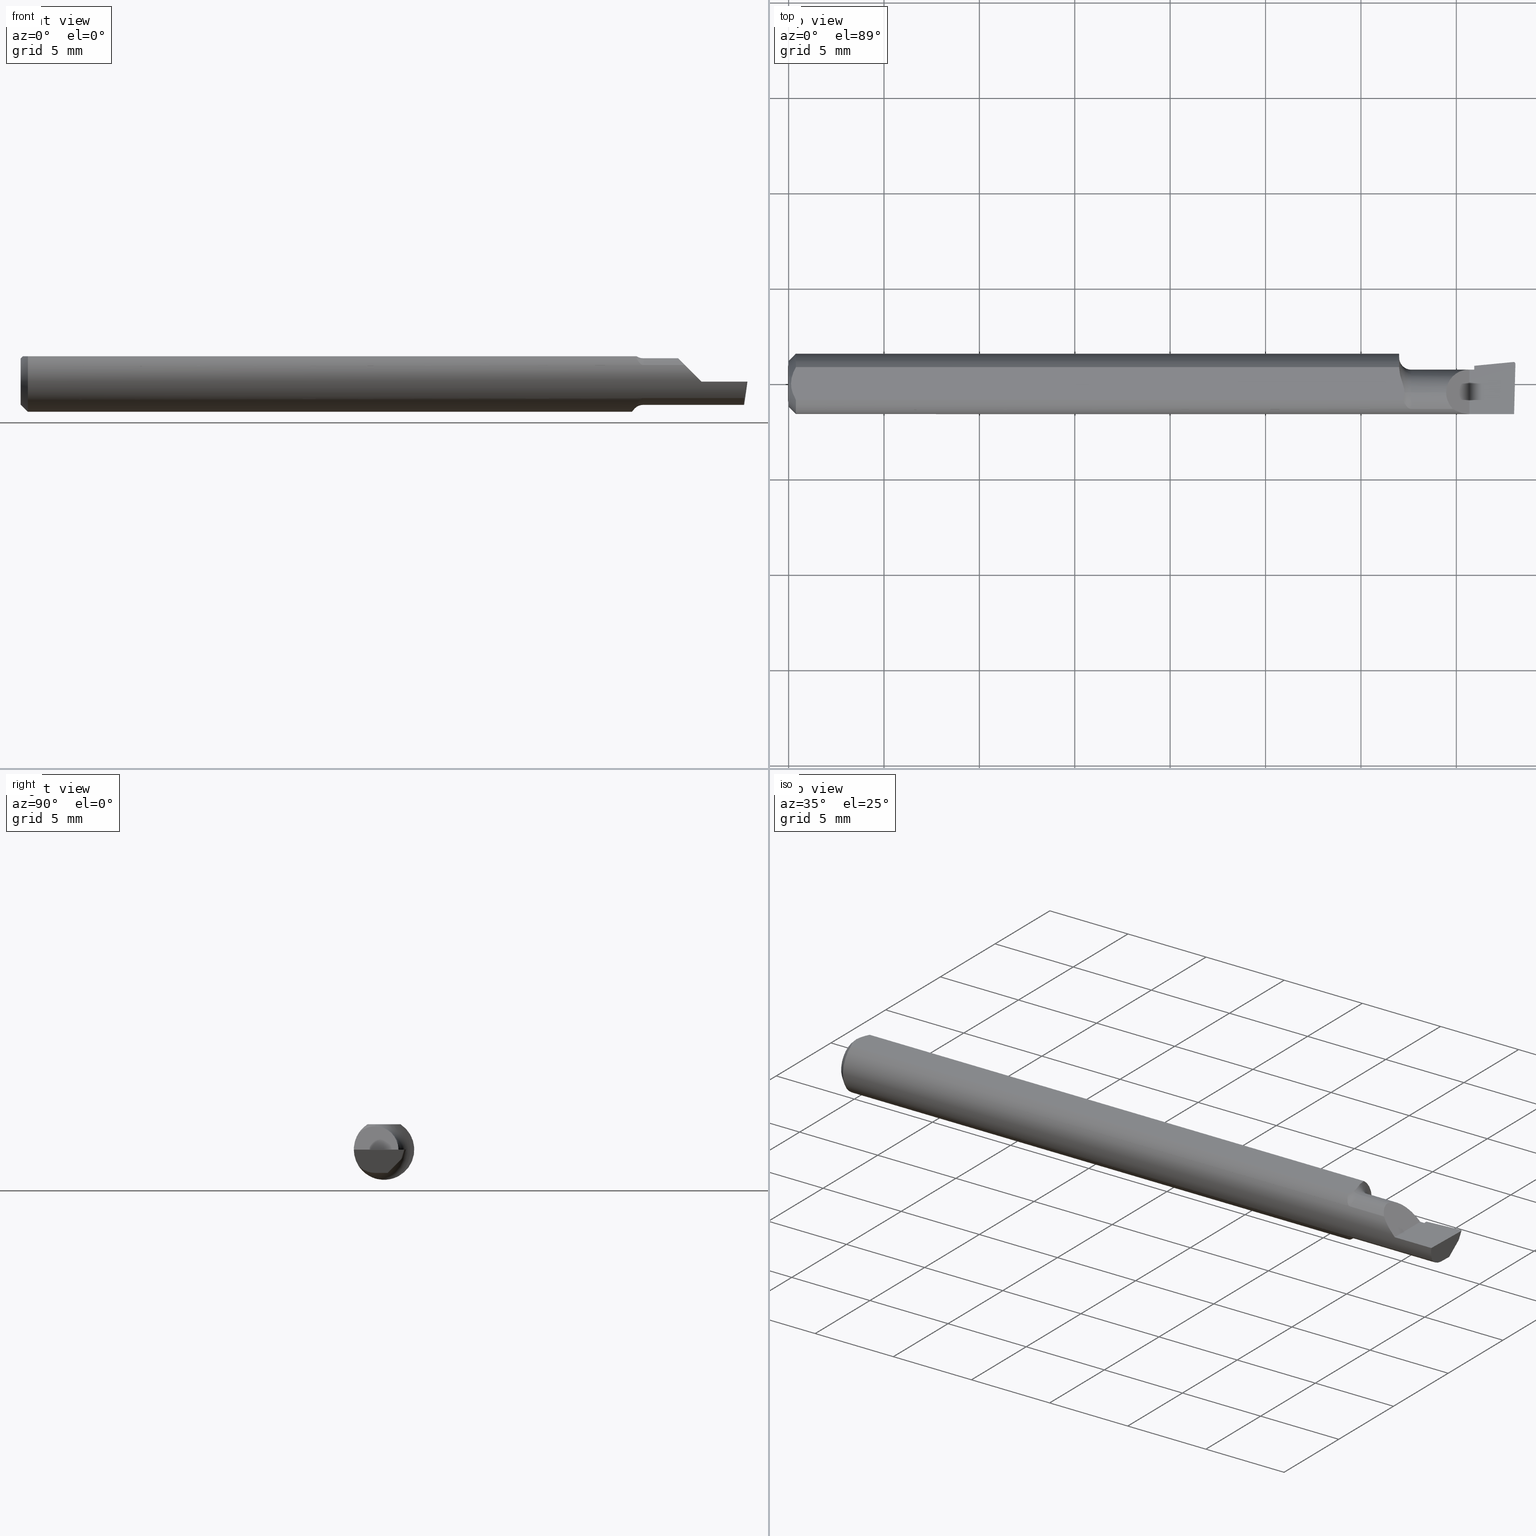
[diagram: canonical four-view strip — front | top / right | iso, engineering-drawing reading convention]
A machine part, canonical four-view strip (front | top / right | iso — engineering-drawing reading convention). The complete STEP part file that produces these views, byte-faithful:
ISO-10303-21;
HEADER;
FILE_DESCRIPTION (( 'STEP AP214' ),
    '1' );
FILE_NAME ('B110200R.STEP',
    '2020-05-08T22:33:18',
    ( '' ),
    ( '' ),
    'SwSTEP 2.0',
    'SolidWorks 2018',
    '' );
FILE_SCHEMA (( 'AUTOMOTIVE_DESIGN' ));
ENDSEC;

DATA;
#1 = DIRECTION ( 'NONE',  ( -0.09165774897393338949, 0.9519021185660613282, -0.2923717047227307186 ) ) ;
#2 = ORIENTED_EDGE ( 'NONE', *, *, #269, .F. ) ;
#3 =( BOUNDED_CURVE ( )  B_SPLINE_CURVE ( 3, ( #749, #81, #681, #183 ),
 .UNSPECIFIED., .F., .T. ) 
 B_SPLINE_CURVE_WITH_KNOTS ( ( 4, 4 ),
 ( 3.511516179717776076, 3.604018710826223604 ),
 .UNSPECIFIED. ) 
 CURVE ( )  GEOMETRIC_REPRESENTATION_ITEM ( )  RATIONAL_B_SPLINE_CURVE ( ( 1.000000000000000000, 0.9992870672494031936, 0.9992870672494031936, 1.000000000000000000 ) ) 
 REPRESENTATION_ITEM ( '' )  );
#4 = CARTESIAN_POINT ( 'NONE',  ( 1.415000000000000036, 0.03746543090320910568, 0.0000000000000000000 ) ) ;
#5 = CARTESIAN_POINT ( 'NONE',  ( 0.0000000000000000000, 0.0000000000000000000, 0.0000000000000000000 ) ) ;
#6 = CARTESIAN_POINT ( 'NONE',  ( 1.510364203804932526, 0.04234793331252790366, -0.01399999999999999856 ) ) ;
#7 = EDGE_CURVE ( 'NONE', #332, #760, #746, .T. ) ;
#8 = CIRCLE ( 'NONE', #721, 0.06235000000000000264 ) ;
#9 =( NAMED_UNIT ( * ) PLANE_ANGLE_UNIT ( ) SI_UNIT ( $, .RADIAN. ) );
#10 = DIRECTION ( 'NONE',  ( -1.000000000000000000, -0.0000000000000000000, -0.0000000000000000000 ) ) ;
#11 = ORIENTED_EDGE ( 'NONE', *, *, #574, .T. ) ;
#12 = CARTESIAN_POINT ( 'NONE',  ( 1.260000000000000231, 0.03016902173913037916, -0.05456512281030693329 ) ) ;
#13 =( CONVERSION_BASED_UNIT ( 'INCH', #48 ) LENGTH_UNIT ( ) NAMED_UNIT ( #380 ) );
#14 = CYLINDRICAL_SURFACE ( 'NONE', #457, 0.04804999999999998855 ) ;
#15 = CARTESIAN_POINT ( 'NONE',  ( 1.495634880358094110, 0.04522968678441242896, 5.345729797355359725E-19 ) ) ;
#16 = ORIENTED_EDGE ( 'NONE', *, *, #695, .F. ) ;
#17 = CARTESIAN_POINT ( 'NONE',  ( 0.004999999999989946514, 7.898418262501303575E-16, 0.05235000000000000070 ) ) ;
#18 = CARTESIAN_POINT ( 'NONE',  ( 1.485355811419347694, 0.01547504541840014763, -0.07997131547042402033 ) ) ;
#19 = EDGE_CURVE ( 'NONE', #169, #155, #554, .T. ) ;
#20 = CARTESIAN_POINT ( 'NONE',  ( 1.268143989668697680, -0.03386738844377053248, 0.05235000000000000070 ) ) ;
#21 = CARTESIAN_POINT ( 'NONE',  ( 0.01500000000000000465, 0.0000000000000000000, 0.0000000000000000000 ) ) ;
#22 = ORIENTED_EDGE ( 'NONE', *, *, #385, .F. ) ;
#23 = ORIENTED_EDGE ( 'NONE', *, *, #310, .T. ) ;
#24 = AXIS2_PLACEMENT_3D ( 'NONE', #598, #555, #29 ) ;
#25 = DIRECTION ( 'NONE',  ( 1.000000000000000000, 0.0000000000000000000, 0.0000000000000000000 ) ) ;
#26 = AXIS2_PLACEMENT_3D ( 'NONE', #757, #541, #544 ) ;
#27 = CARTESIAN_POINT ( 'NONE',  ( 1.270981797547469316, -0.02106709414031694705, 0.05235000000000000070 ) ) ;
#28 =( BOUNDED_CURVE ( )  B_SPLINE_CURVE ( 3, ( #356, #173, #453, #65 ),
 .UNSPECIFIED., .F., .F. ) 
 B_SPLINE_CURVE_WITH_KNOTS ( ( 4, 4 ),
 ( 3.064097098354549686, 3.156599629463103351 ),
 .UNSPECIFIED. ) 
 CURVE ( )  GEOMETRIC_REPRESENTATION_ITEM ( )  RATIONAL_B_SPLINE_CURVE ( ( 1.000000000000000000, 0.9992870672494015283, 0.9992870672494015283, 1.000000000000000000 ) ) 
 REPRESENTATION_ITEM ( '' )  );
#29 = DIRECTION ( 'NONE',  ( 0.0000000000000000000, 0.0000000000000000000, 1.000000000000000000 ) ) ;
#30 = DIRECTION ( 'NONE',  ( 0.0000000000000000000, 1.000000000000000000, -4.268512490100410663E-17 ) ) ;
#31 = ORIENTED_EDGE ( 'NONE', *, *, #19, .T. ) ;
#32 = DIMENSIONAL_EXPONENTS ( 1.000000000000000000, 0.0000000000000000000, 0.0000000000000000000, 0.0000000000000000000, 0.0000000000000000000, 0.0000000000000000000, 0.0000000000000000000 ) ;
#33 = EDGE_LOOP ( 'NONE', ( #744, #701, #756, #55 ) ) ;
#34 = PRODUCT_DEFINITION_FORMATION_WITH_SPECIFIED_SOURCE ( 'ANY', '', #234, .NOT_KNOWN. ) ;
#35 = EDGE_CURVE ( 'NONE', #760, #704, #530, .T. ) ;
#36 = EDGE_CURVE ( 'NONE', #94, #245, #587, .T. ) ;
#37 = CIRCLE ( 'NONE', #585, 0.04804999999999998161 ) ;
#38 = ORIENTED_EDGE ( 'NONE', *, *, #473, .F. ) ;
#39 = VERTEX_POINT ( 'NONE', #97 ) ;
#40 = CARTESIAN_POINT ( 'NONE',  ( 1.285000000000000142, -0.01839999999999999969, 0.0000000000000000000 ) ) ;
#41 = LINE ( 'NONE', #214, #446 ) ;
#42 = FACE_OUTER_BOUND ( 'NONE', #294, .T. ) ;
#43 = EDGE_CURVE ( 'NONE', #458, #680, #747, .T. ) ;
#44 = CARTESIAN_POINT ( 'NONE',  ( 1.498346190944513046, 0.04524764111161404256, -3.059310553955384747E-19 ) ) ;
#45 = AXIS2_PLACEMENT_3D ( 'NONE', #711, #238, #783 ) ;
#46 = ORIENTED_EDGE ( 'NONE', *, *, #592, .T. ) ;
#47 = CARTESIAN_POINT ( 'NONE',  ( 1.493880948194815650, 0.04095478369585308503, -0.01336835189448937374 ) ) ;
#48 = LENGTH_MEASURE_WITH_UNIT ( LENGTH_MEASURE( 0.02539999999999999897 ), #394 );
#49 = CARTESIAN_POINT ( 'NONE',  ( 1.405000000000000249, -0.06235000000000005121, 1.163414459189982046E-17 ) ) ;
#50 = VECTOR ( 'NONE', #306, 39.37007874015748143 ) ;
#51 = DIRECTION ( 'NONE',  ( 0.1053106618242196646, 0.6976485211320160307, 0.7086580314005165304 ) ) ;
#52 = CARTESIAN_POINT ( 'NONE',  ( 0.01500000000000000465, 0.0000000000000000000, 0.0000000000000000000 ) ) ;
#53 = CARTESIAN_POINT ( 'NONE',  ( 1.497690526998713967, 0.03804183703948781081, -0.01718068703854501444 ) ) ;
#54 = ORIENTED_EDGE ( 'NONE', *, *, #592, .F. ) ;
#55 = ORIENTED_EDGE ( 'NONE', *, *, #477, .F. ) ;
#56 = EDGE_CURVE ( 'NONE', #512, #219, #381, .T. ) ;
#57 = B_SPLINE_CURVE_WITH_KNOTS ( 'NONE', 3,
 ( #179, #427, #614, #563, #191, #369 ),
 .UNSPECIFIED., .F., .F.,
 ( 4, 2, 4 ),
 ( 0.002133667072902290223, 0.002585433046183635737, 0.003037199019464981251 ),
 .UNSPECIFIED. ) ;
#58 = UNCERTAINTY_MEASURE_WITH_UNIT (LENGTH_MEASURE( 1.000000000000000082E-05 ), #685, 'distance_accuracy_value', 'NONE');
#59 = FACE_OUTER_BOUND ( 'NONE', #101, .T. ) ;
#60 = ORIENTED_EDGE ( 'NONE', *, *, #99, .T. ) ;
#61 = CARTESIAN_POINT ( 'NONE',  ( 1.285000000000000142, -0.01839999999999999275, -0.04804999999999998161 ) ) ;
#62 = EDGE_LOOP ( 'NONE', ( #419, #175, #710 ) ) ;
#63 = CARTESIAN_POINT ( 'NONE',  ( 1.500053207916542952, 0.04152013807844032872, 0.001313657550809517547 ) ) ;
#64 = LINE ( 'NONE', #136, #163 ) ;
#65 = CARTESIAN_POINT ( 'NONE',  ( 1.494167560590874633, 0.04076208604347241610, -0.01402709660331433010 ) ) ;
#66 = LINE ( 'NONE', #124, #107 ) ;
#67 = FACE_OUTER_BOUND ( 'NONE', #110, .T. ) ;
#68 = CARTESIAN_POINT ( 'NONE',  ( 1.497145952778608846, 0.03443421182165976729, -0.02084524377084991803 ) ) ;
#69 = ORIENTED_EDGE ( 'NONE', *, *, #342, .F. ) ;
#70 = DIRECTION ( 'NONE',  ( -0.1240019227989742623, -0.3022330132596668939, -0.9451342385281252811 ) ) ;
#71 = DIRECTION ( 'NONE',  ( 0.0000000000000000000, 0.0000000000000000000, 1.000000000000000000 ) ) ;
#72 = DIRECTION ( 'NONE',  ( 0.0000000000000000000, 0.9524855432518762877, -0.3045837978228290721 ) ) ;
#73 = EDGE_CURVE ( 'NONE', #39, #621, #623, .T. ) ;
#74 = PRODUCT_RELATED_PRODUCT_CATEGORY ( 'part', '', ( #234 ) ) ;
#75 = LINE ( 'NONE', #367, #713 ) ;
#76 = CARTESIAN_POINT ( 'NONE',  ( 1.261396250014342746, -0.002002297547419253261, -0.06287403108402092600 ) ) ;
#77 = EDGE_CURVE ( 'NONE', #471, #591, #308, .T. ) ;
#78 = EDGE_CURVE ( 'NONE', #202, #471, #553, .T. ) ;
#79 = ORIENTED_EDGE ( 'NONE', *, *, #343, .F. ) ;
#80 = ORIENTED_EDGE ( 'NONE', *, *, #696, .T. ) ;
#81 = CARTESIAN_POINT ( 'NONE',  ( 1.495883579913038108, 0.04524764111161418134, -4.348183671430309906E-21 ) ) ;
#82 = CARTESIAN_POINT ( 'NONE',  ( 1.492086480543132199, -0.03117368152160949688, -0.04804999999999997468 ) ) ;
#83 = ORIENTED_EDGE ( 'NONE', *, *, #423, .T. ) ;
#84 =( LENGTH_UNIT ( ) NAMED_UNIT ( * ) SI_UNIT ( $, .METRE. ) );
#85 = CARTESIAN_POINT ( 'NONE',  ( 1.497171920470530715, -0.06235000000000005121, 3.552677088410494756E-19 ) ) ;
#86 = CARTESIAN_POINT ( 'NONE',  ( 1.496007920276506864, 0.04524764111161416053, -1.707404996040164512E-17 ) ) ;
#87 = LINE ( 'NONE', #249, #661 ) ;
#88 = DIRECTION ( 'NONE',  ( -1.000000000000000000, -0.0000000000000000000, -0.0000000000000000000 ) ) ;
#89 =( BOUNDED_CURVE ( )  B_SPLINE_CURVE ( 3, ( #429, #434, #624, #85 ),
 .UNSPECIFIED., .F., .T. ) 
 B_SPLINE_CURVE_WITH_KNOTS ( ( 4, 4 ),
 ( 0.7791845851203085260, 1.360746882514646483 ),
 .UNSPECIFIED. ) 
 CURVE ( )  GEOMETRIC_REPRESENTATION_ITEM ( )  RATIONAL_B_SPLINE_CURVE ( ( 1.000000000000000000, 0.9720134746468966913, 0.9720134746468966913, 1.000000000000000000 ) ) 
 REPRESENTATION_ITEM ( '' )  );
#90 = CARTESIAN_POINT ( 'NONE',  ( 1.405000000000000249, -0.2500000000000000555, 1.163414459189982046E-17 ) ) ;
#91 = CARTESIAN_POINT ( 'NONE',  ( 1.269002343694370927, -0.03635371779854155994, -0.05080473676934896266 ) ) ;
#92 = EDGE_LOOP ( 'NONE', ( #430, #730, #205, #474 ) ) ;
#93 = CARTESIAN_POINT ( 'NONE',  ( 0.0000000000000000000, 0.0000000000000000000, 0.0000000000000000000 ) ) ;
#94 = VERTEX_POINT ( 'NONE', #49 ) ;
#95 = VECTOR ( 'NONE', #25, 39.37007874015748143 ) ;
#96 = ORIENTED_EDGE ( 'NONE', *, *, #116, .T. ) ;
#97 = CARTESIAN_POINT ( 'NONE',  ( 1.493103169438389832, 0.007652100972630445155, -0.04804999999999998161 ) ) ;
#98 = LINE ( 'NONE', #543, #220 ) ;
#99 = EDGE_CURVE ( 'NONE', #185, #94, #722, .T. ) ;
#100 = CARTESIAN_POINT ( 'NONE',  ( 1.499944638786162132, 0.04353584053852216362, -5.016844586834685928E-19 ) ) ;
#101 = EDGE_LOOP ( 'NONE', ( #502, #274, #60, #617, #282, #69, #388, #54, #22, #328, #313, #365, #344 ) ) ;
#102 = ORIENTED_EDGE ( 'NONE', *, *, #335, .T. ) ;
#103 = FACE_OUTER_BOUND ( 'NONE', #577, .T. ) ;
#104 = VERTEX_POINT ( 'NONE', #208 ) ;
#105 = CARTESIAN_POINT ( 'NONE',  ( 2.249639673992775738E-32, 0.02964999999999998193, 1.836970198721025250E-16 ) ) ;
#106 = COLOUR_RGB ( '',0.7529411764705882248, 0.7529411764705882248, 0.7529411764705882248 ) ;
#107 = VECTOR ( 'NONE', #393, 39.37007874015748143 ) ;
#108 = AXIS2_PLACEMENT_3D ( 'NONE', #377, #675, #667 ) ;
#109 = APPLICATION_CONTEXT ( 'automotive_design' ) ;
#110 = EDGE_LOOP ( 'NONE', ( #568, #299, #382, #785 ) ) ;
#111 = VERTEX_POINT ( 'NONE', #768 ) ;
#112 = CIRCLE ( 'NONE', #24, 0.04804999999999998161 ) ;
#113 = SURFACE_SIDE_STYLE ('',( #305 ) ) ;
#114 = EDGE_CURVE ( 'NONE', #631, #169, #433, .T. ) ;
#115 = EDGE_CURVE ( 'NONE', #111, #402, #41, .T. ) ;
#116 = EDGE_CURVE ( 'NONE', #603, #760, #8, .T. ) ;
#117 = CARTESIAN_POINT ( 'NONE',  ( 1.405000000000000249, 0.02964999999999991601, 1.163414459189982046E-17 ) ) ;
#118 = DIRECTION ( 'NONE',  ( 0.0000000000000000000, 0.0000000000000000000, -1.000000000000000000 ) ) ;
#119 = ORIENTED_EDGE ( 'NONE', *, *, #399, .F. ) ;
#120 = DIRECTION ( 'NONE',  ( -0.7071067811865432429, 0.0000000000000000000, -0.7071067811865517916 ) ) ;
#121 = CARTESIAN_POINT ( 'NONE',  ( 0.01500000000000000465, 0.0000000000000000000, 0.0000000000000000000 ) ) ;
#122 = PLANE ( 'NONE',  #410 ) ;
#123 = CARTESIAN_POINT ( 'NONE',  ( 1.509953961983671489, 0.04660845752520201279, 0.0000000000000000000 ) ) ;
#124 = CARTESIAN_POINT ( 'NONE',  ( 1.415000000000000036, 0.01335851473338080936, -0.03441620828959360973 ) ) ;
#125 = FACE_OUTER_BOUND ( 'NONE', #62, .T. ) ;
#126 = AXIS2_PLACEMENT_3D ( 'NONE', #5, #292, #71 ) ;
#127 = CIRCLE ( 'NONE', #426, 0.07304999999999998994 ) ;
#128 = TOROIDAL_SURFACE ( 'NONE', #359, 0.07304999999999998994, 0.02499999999999980016 ) ;
#129 = CARTESIAN_POINT ( 'NONE',  ( 0.0000000000000000000, -0.01839999999999999969, 0.0000000000000000000 ) ) ;
#130 = SURFACE_STYLE_USAGE ( .BOTH. , #755 ) ;
#131 = DIRECTION ( 'NONE',  ( -0.0000000000000000000, 0.0000000000000000000, 1.000000000000000000 ) ) ;
#132 = FILL_AREA_STYLE_COLOUR ( '', #106 ) ;
#133 = ORIENTED_EDGE ( 'NONE', *, *, #182, .F. ) ;
#134 = CARTESIAN_POINT ( 'NONE',  ( 1.273631399483170279, -0.04510599191766634375, -0.04319271381807444216 ) ) ;
#135 = CARTESIAN_POINT ( 'NONE',  ( 0.01500000000000000465, 0.03386738844375223462, 0.05234999999999997988 ) ) ;
#136 = CARTESIAN_POINT ( 'NONE',  ( 1.500000000000000222, -0.01839999999999999969, -0.04804999999999998855 ) ) ;
#137 = ORIENTED_EDGE ( 'NONE', *, *, #358, .F. ) ;
#138 = CARTESIAN_POINT ( 'NONE',  ( 1.493798075755724097, 0.04075279661035129813, -0.01399999999999999856 ) ) ;
#139 = CARTESIAN_POINT ( 'NONE',  ( 1.270981797547482639, -0.01413225355780869767, 0.05235000000000000764 ) ) ;
#140 = AXIS2_PLACEMENT_3D ( 'NONE', #6, #549, #534 ) ;
#141 = CARTESIAN_POINT ( 'NONE',  ( 0.0000000000000000000, -0.01839999999999999969, 0.04804999999999998855 ) ) ;
#142 = CYLINDRICAL_SURFACE ( 'NONE', #197, 0.04804999999999998855 ) ;
#143 = CARTESIAN_POINT ( 'NONE',  ( 0.8348153170171558335, -0.01839999999999999969, 8.146162928567849885E-17 ) ) ;
#144 = CARTESIAN_POINT ( 'NONE',  ( 0.01218518006020415101, 0.02868529347538066598, 0.05235000000000000070 ) ) ;
#145 = LINE ( 'NONE', #683, #547 ) ;
#146 = CARTESIAN_POINT ( 'NONE',  ( 1.415000000000000036, 0.03746543090320910568, 0.0000000000000000000 ) ) ;
#147 = CARTESIAN_POINT ( 'NONE',  ( 1.270168994702040255, -0.01001121285792124296, 0.05235000000000000070 ) ) ;
#148 = VERTEX_POINT ( 'NONE', #396 ) ;
#149 = EDGE_CURVE ( 'NONE', #512, #621, #489, .T. ) ;
#150 = CARTESIAN_POINT ( 'NONE',  ( 1.276855754336166049, -0.04856891343705537628, -0.03913748562448326335 ) ) ;
#151 = DIRECTION ( 'NONE',  ( -0.1240019227989742484, -0.3022330132596668384, -0.9451342385281251701 ) ) ;
#152 = ORIENTED_EDGE ( 'NONE', *, *, #740, .F. ) ;
#153 =( BOUNDED_CURVE ( )  B_SPLINE_CURVE ( 3, ( #271, #447, #501, #582 ),
 .UNSPECIFIED., .F., .F. ) 
 B_SPLINE_CURVE_WITH_KNOTS ( ( 4, 4 ),
 ( 4.712388980384689674, 5.293951277779022746 ),
 .UNSPECIFIED. ) 
 CURVE ( )  GEOMETRIC_REPRESENTATION_ITEM ( )  RATIONAL_B_SPLINE_CURVE ( ( 1.000000000000000000, 0.9720134746468973574, 0.9720134746468973574, 1.000000000000000000 ) ) 
 REPRESENTATION_ITEM ( '' )  );
#154 = DIRECTION ( 'NONE',  ( 0.0000000000000000000, 0.0000000000000000000, 1.000000000000000000 ) ) ;
#155 = VERTEX_POINT ( 'NONE', #775 ) ;
#156 = FACE_OUTER_BOUND ( 'NONE', #270, .T. ) ;
#157 = CARTESIAN_POINT ( 'NONE',  ( 1.260000000000000231, 0.03386738844375224156, 0.05235000000000000070 ) ) ;
#158 = ORIENTED_EDGE ( 'NONE', *, *, #78, .T. ) ;
#159 = VERTEX_POINT ( 'NONE', #267 ) ;
#160 =( NAMED_UNIT ( * ) SI_UNIT ( $, .STERADIAN. ) SOLID_ANGLE_UNIT ( ) );
#161 = DIRECTION ( 'NONE',  ( -1.000000000000000000, 0.0000000000000000000, -0.0000000000000000000 ) ) ;
#162 = ORIENTED_EDGE ( 'NONE', *, *, #695, .T. ) ;
#163 = VECTOR ( 'NONE', #448, 39.37007874015748143 ) ;
#164 = CARTESIAN_POINT ( 'NONE',  ( 1.500000000000000222, -0.2500000000000000555, 0.0000000000000000000 ) ) ;
#165 = ORIENTED_EDGE ( 'NONE', *, *, #611, .T. ) ;
#166 = DIRECTION ( 'NONE',  ( 0.1240019227989742484, 0.3022330132596668939, 0.9451342385281251701 ) ) ;
#167 = DIRECTION ( 'NONE',  ( -1.224646799147350495E-16, 0.0000000000000000000, -1.000000000000000000 ) ) ;
#168 = AXIS2_PLACEMENT_3D ( 'NONE', #253, #287, #349 ) ;
#169 = VERTEX_POINT ( 'NONE', #336 ) ;
#170 = CIRCLE ( 'NONE', #665, 0.02499999999999980016 ) ;
#171 = CARTESIAN_POINT ( 'NONE',  ( 0.0000000000000000000, 0.0000000000000000000, 0.0000000000000000000 ) ) ;
#172 = DIRECTION ( 'NONE',  ( 0.0000000000000000000, 0.9524855432518762877, -0.3045837978228290721 ) ) ;
#173 = CARTESIAN_POINT ( 'NONE',  ( 1.493922339957157730, 0.04076476189203241673, -0.01399999999999998294 ) ) ;
#174 = CARTESIAN_POINT ( 'NONE',  ( 1.492420971165607124, -0.01839999999999999969, -0.04804999999999998855 ) ) ;
#175 = ORIENTED_EDGE ( 'NONE', *, *, #523, .T. ) ;
#176 = VECTOR ( 'NONE', #151, 39.37007874015748854 ) ;
#177 = DIRECTION ( 'NONE',  ( -0.7071067811865516806, 0.0000000000000000000, 0.7071067811865431318 ) ) ;
#178 = ORIENTED_EDGE ( 'NONE', *, *, #473, .T. ) ;
#179 = CARTESIAN_POINT ( 'NONE',  ( 0.01500000000000185039, -0.03386738844380016850, 0.05235000000000000070 ) ) ;
#180 = CARTESIAN_POINT ( 'NONE',  ( 1.376852961672026865, 0.02964999999999999233, 0.02814703832797277663 ) ) ;
#181 = EDGE_CURVE ( 'NONE', #94, #580, #153, .T. ) ;
#182 = EDGE_CURVE ( 'NONE', #621, #111, #64, .T. ) ;
#183 = CARTESIAN_POINT ( 'NONE',  ( 1.495634880358094110, 0.04522968678441242896, 5.345729797355359725E-19 ) ) ;
#184 = ORIENTED_EDGE ( 'NONE', *, *, #343, .T. ) ;
#185 = VERTEX_POINT ( 'NONE', #487 ) ;
#186 = CARTESIAN_POINT ( 'NONE',  ( 1.268472688040297003, -0.003926822060866551334, 0.05235000000000000070 ) ) ;
#187 =( NAMED_UNIT ( * ) PLANE_ANGLE_UNIT ( ) SI_UNIT ( $, .RADIAN. ) );
#188 = LINE ( 'NONE', #259, #418 ) ;
#189 = VERTEX_POINT ( 'NONE', #703 ) ;
#190 = EDGE_LOOP ( 'NONE', ( #766, #548, #379, #289, #224, #576, #734, #240 ) ) ;
#191 = CARTESIAN_POINT ( 'NONE',  ( 0.004999999999998894218, -0.005957634400466962389, 0.05235000000000000070 ) ) ;
#192 = VECTOR ( 'NONE', #634, 39.37007874015748143 ) ;
#193 = CARTESIAN_POINT ( 'NONE',  ( 1.490100436386402993, -0.04484455226154464291, -0.06130493938609104382 ) ) ;
#194 = DIRECTION ( 'NONE',  ( 0.02617694830789164123, 0.9996573249755568158, -3.158139334226007736E-18 ) ) ;
#195 = PLANE ( 'NONE',  #666 ) ;
#196 = PLANE ( 'NONE',  #463 ) ;
#197 = AXIS2_PLACEMENT_3D ( 'NONE', #659, #223, #717 ) ;
#198 = CYLINDRICAL_SURFACE ( 'NONE', #126, 0.06235000000000000264 ) ;
#199 = CARTESIAN_POINT ( 'NONE',  ( 1.260000000000000231, 0.1123499999999999915, 0.05234999999999998682 ) ) ;
#200 = ORIENTED_EDGE ( 'NONE', *, *, #635, .F. ) ;
#201 = DIRECTION ( 'NONE',  ( 1.000000000000000000, 0.0000000000000000000, 0.0000000000000000000 ) ) ;
#202 = VERTEX_POINT ( 'NONE', #325 ) ;
#203 = CARTESIAN_POINT ( 'NONE',  ( 1.262303760771541050, 0.01498942864105911633, 0.05234999999999997988 ) ) ;
#204 = CONICAL_SURFACE ( 'NONE', #257, 0.06235000000000000264, 0.7853981633974601584 ) ;
#205 = ORIENTED_EDGE ( 'NONE', *, *, #182, .T. ) ;
#206 = DIRECTION ( 'NONE',  ( 0.0000000000000000000, 0.0000000000000000000, 1.000000000000000000 ) ) ;
#207 = VERTEX_POINT ( 'NONE', #684 ) ;
#208 = CARTESIAN_POINT ( 'NONE',  ( 0.0000000000000000000, 6.717187693324805358E-18, 0.04734999999999964237 ) ) ;
#209 = APPLICATION_PROTOCOL_DEFINITION ( 'draft international standard', 'automotive_design', 1998, #655 ) ;
#210 = AXIS2_PLACEMENT_3D ( 'NONE', #18, #357, #172 ) ;
#211 = VECTOR ( 'NONE', #288, 39.37007874015748143 ) ;
#212 = CARTESIAN_POINT ( 'NONE',  ( 1.278063614445013263, -0.04963912592730837514, -0.03775824298307122601 ) ) ;
#213 = CARTESIAN_POINT ( 'NONE',  ( 1.494167560590874633, 0.04076208604347241610, -0.01402709660331433010 ) ) ;
#215 = ORIENTED_EDGE ( 'NONE', *, *, #550, .F. ) ;
#214 = CARTESIAN_POINT ( 'NONE',  ( 1.415000000000000036, -0.01839999999999999969, -0.04804999999999998855 ) ) ;
#216 = PLANE ( 'NONE',  #322 ) ;
#217 = ORIENTED_EDGE ( 'NONE', *, *, #784, .F. ) ;
#218 = CARTESIAN_POINT ( 'NONE',  ( 1.496461277308446691, 0.04065349357661121599, -0.01436668378927327162 ) ) ;
#219 = VERTEX_POINT ( 'NONE', #630 ) ;
#220 = VECTOR ( 'NONE', #251, 39.37007874015748143 ) ;
#221 = CARTESIAN_POINT ( 'NONE',  ( 1.415000000000000036, -0.01839999999999999969, 0.0000000000000000000 ) ) ;
#222 = CARTESIAN_POINT ( 'NONE',  ( 1.356949999999999656, 0.009747038327972780414, 0.04804999999999998855 ) ) ;
#223 = DIRECTION ( 'NONE',  ( -1.000000000000000000, -0.0000000000000000000, -0.0000000000000000000 ) ) ;
#224 = ORIENTED_EDGE ( 'NONE', *, *, #653, .T. ) ;
#225 = ORIENTED_EDGE ( 'NONE', *, *, #439, .F. ) ;
#226 = EDGE_CURVE ( 'NONE', #219, #323, #408, .T. ) ;
#227 = PLANE ( 'NONE',  #331 ) ;
#228 = ORIENTED_EDGE ( 'NONE', *, *, #77, .F. ) ;
#229 = DIRECTION ( 'NONE',  ( -0.9922060308645429538, 0.02598182930471154214, 0.1218693434051831975 ) ) ;
#230 = VECTOR ( 'NONE', #625, 39.37007874015748143 ) ;
#231 = DIRECTION ( 'NONE',  ( -1.000000000000000000, 0.0000000000000000000, 1.224646799147350495E-16 ) ) ;
#232 = FACE_OUTER_BOUND ( 'NONE', #561, .T. ) ;
#233 = PLANE ( 'NONE',  #252 ) ;
#234 = PRODUCT ( 'B110200R', 'B110200R', '', ( #640 ) ) ;
#235 = DIRECTION ( 'NONE',  ( 0.0000000000000000000, -0.2936076258024064023, -0.9559260233253795702 ) ) ;
#236 = VERTEX_POINT ( 'NONE', #705 ) ;
#237 = CARTESIAN_POINT ( 'NONE',  ( 1.415000000000000036, 0.03746543090320910568, 0.0000000000000000000 ) ) ;
#238 = DIRECTION ( 'NONE',  ( -1.000000000000000000, -0.0000000000000000000, -0.0000000000000000000 ) ) ;
#239 = LINE ( 'NONE', #105, #456 ) ;
#240 = ORIENTED_EDGE ( 'NONE', *, *, #19, .F. ) ;
#241 = VECTOR ( 'NONE', #319, 39.37007874015748143 ) ;
#242 = CARTESIAN_POINT ( 'NONE',  ( 0.01500000000000000465, 0.0000000000000000000, -0.06235000000000000264 ) ) ;
#243 = CARTESIAN_POINT ( 'NONE',  ( 1.276602410087811723, -0.04843664215652546817, 0.03931692004732212364 ) ) ;
#244 = DIRECTION ( 'NONE',  ( -1.000000000000000000, -0.0000000000000000000, -0.0000000000000000000 ) ) ;
#245 = VERTEX_POINT ( 'NONE', #260 ) ;
#246 = DIRECTION ( 'NONE',  ( 0.0000000000000000000, 0.0000000000000000000, 1.000000000000000000 ) ) ;
#247 = DIRECTION ( 'NONE',  ( 1.000000000000000000, 0.0000000000000000000, 0.0000000000000000000 ) ) ;
#248 = ORIENTED_EDGE ( 'NONE', *, *, #56, .T. ) ;
#249 = CARTESIAN_POINT ( 'NONE',  ( 0.0000000000000000000, -0.01839999999999999275, -0.04804999999999998855 ) ) ;
#250 = PLANE ( 'NONE',  #641 ) ;
#251 = DIRECTION ( 'NONE',  ( 0.7071067811865391350, 8.659560562355035164E-17, 0.7071067811865558994 ) ) ;
#252 = AXIS2_PLACEMENT_3D ( 'NONE', #90, #120, #177 ) ;
#253 = CARTESIAN_POINT ( 'NONE',  ( 1.415000000000000036, -0.01839999999999999969, 0.0000000000000000000 ) ) ;
#254 = CARTESIAN_POINT ( 'NONE',  ( 1.281001860247194868, -0.05138041438524988680, -0.03535223831097310948 ) ) ;
#255 = EDGE_CURVE ( 'NONE', #704, #462, #286, .T. ) ;
#256 = ORIENTED_EDGE ( 'NONE', *, *, #99, .F. ) ;
#257 = AXIS2_PLACEMENT_3D ( 'NONE', #736, #539, #738 ) ;
#258 = DIRECTION ( 'NONE',  ( 0.0000000000000000000, -1.000000000000000000, 4.268512490100411895E-17 ) ) ;
#259 = CARTESIAN_POINT ( 'NONE',  ( 1.415000000000000036, 0.03394043341024438609, -0.01147666661066422747 ) ) ;
#260 = CARTESIAN_POINT ( 'NONE',  ( 1.405000000000000249, 0.02964999999999991601, 1.163414459189982046E-17 ) ) ;
#261 = CIRCLE ( 'NONE', #594, 0.06235000000000000264 ) ;
#262 = CARTESIAN_POINT ( 'NONE',  ( 1.275232443815720096, -0.04692169178955556824, 0.04112849538229104013 ) ) ;
#263 = CARTESIAN_POINT ( 'NONE',  ( 1.499880855614023956, 0.04110005946549034894, 2.844601328255077614E-20 ) ) ;
#264 = LENGTH_MEASURE_WITH_UNIT ( LENGTH_MEASURE( 0.02539999999999999897 ), #708 );
#265 = CARTESIAN_POINT ( 'NONE',  ( 1.267774730512701620, -0.03308328010062915048, -0.05299899880320921991 ) ) ;
#266 = VERTEX_POINT ( 'NONE', #560 ) ;
#267 = CARTESIAN_POINT ( 'NONE',  ( 1.415000000000000036, 0.007456147106387282439, -0.04050015008383128778 ) ) ;
#268 = EDGE_CURVE ( 'NONE', #189, #332, #371, .T. ) ;
#269 = EDGE_CURVE ( 'NONE', #245, #527, #239, .T. ) ;
#270 = EDGE_LOOP ( 'NONE', ( #16, #376, #79, #782, #383, #404 ) ) ;
#271 = CARTESIAN_POINT ( 'NONE',  ( 1.405000000000000249, -0.06235000000000005121, 1.163414459189982046E-17 ) ) ;
#272 = CARTESIAN_POINT ( 'NONE',  ( 1.497451155291631864, 0.008070764392015433372, -0.04804999999999998855 ) ) ;
#273 = CARTESIAN_POINT ( 'NONE',  ( 1.285000000000000142, -0.05209999999999941067, -0.03425072991923002602 ) ) ;
#274 = ORIENTED_EDGE ( 'NONE', *, *, #520, .T. ) ;
#275 = CARTESIAN_POINT ( 'NONE',  ( 1.498384822753116241, 0.04264131821163512359, -0.01250862198832632631 ) ) ;
#276 = CYLINDRICAL_SURFACE ( 'NONE', #210, 0.004000000000000000083 ) ;
#277 = EDGE_LOOP ( 'NONE', ( #137, #662, #505, #152 ) ) ;
#278 = SURFACE_STYLE_USAGE ( .BOTH. , #113 ) ;
#279 = AXIS2_PLACEMENT_3D ( 'NONE', #649, #733, #650 ) ;
#280 = CARTESIAN_POINT ( 'NONE',  ( 1.265629458297511833, -0.02606820000987060404, -0.05677892429946727881 ) ) ;
#281 = CARTESIAN_POINT ( 'NONE',  ( 1.285000000000000142, -0.05209999999999938985, 0.03425072991923003990 ) ) ;
#282 = ORIENTED_EDGE ( 'NONE', *, *, #423, .F. ) ;
#283 = ADVANCED_FACE ( 'NONE', ( #459 ), #196, .F. ) ;
#284 = VECTOR ( 'NONE', #392, 39.37007874015748143 ) ;
#285 = CARTESIAN_POINT ( 'NONE',  ( 1.370749270080770632, -0.05210000000000027803, 0.03425072991922911009 ) ) ;
#286 = B_SPLINE_CURVE_WITH_KNOTS ( 'NONE', 3,
 ( #575, #386, #203, #690, #510, #329, #186, #147, #139, #421 ),
 .UNSPECIFIED., .F., .F.,
 ( 4, 2, 2, 2, 4 ),
 ( 0.008710904206567463004, 0.009350419755586453219, 0.009510298642841200772, 0.009670177530095948326, 0.009989935304605438229 ),
 .UNSPECIFIED. ) ;
#287 = DIRECTION ( 'NONE',  ( -1.000000000000000000, -0.0000000000000000000, -0.0000000000000000000 ) ) ;
#288 = DIRECTION ( 'NONE',  ( 0.7071067811865391350, 0.0000000000000000000, -0.7071067811865558994 ) ) ;
#289 = ORIENTED_EDGE ( 'NONE', *, *, #696, .F. ) ;
#290 = CARTESIAN_POINT ( 'NONE',  ( 1.494167560590874633, 0.04076208604347241610, -0.01402709660331433010 ) ) ;
#291 = TOROIDAL_SURFACE ( 'NONE', #45, 0.07304999999999998994, 0.02499999999999980016 ) ;
#292 = DIRECTION ( 'NONE',  ( -1.000000000000000000, -0.0000000000000000000, -0.0000000000000000000 ) ) ;
#293 = UNCERTAINTY_MEASURE_WITH_UNIT (LENGTH_MEASURE( 1.000000000000000082E-05 ), #13, 'distance_accuracy_value', 'NONE');
#294 = EDGE_LOOP ( 'NONE', ( #80, #538, #412, #338, #692, #720 ) ) ;
#295 = LINE ( 'NONE', #272, #656 ) ;
#296 = AXIS2_PLACEMENT_3D ( 'NONE', #409, #668, #364 ) ;
#297 = ORIENTED_EDGE ( 'NONE', *, *, #78, .F. ) ;
#298 = CARTESIAN_POINT ( 'NONE',  ( 1.356949999999999878, -0.01839999999999999969, 0.04804999999999998855 ) ) ;
#299 = ORIENTED_EDGE ( 'NONE', *, *, #321, .T. ) ;
#300 = DIRECTION ( 'NONE',  ( 0.0000000000000000000, 0.0000000000000000000, 1.000000000000000000 ) ) ;
#301 = DIRECTION ( 'NONE',  ( 0.0000000000000000000, 0.0000000000000000000, 1.000000000000000000 ) ) ;
#302 = CARTESIAN_POINT ( 'NONE',  ( 1.350000000000000089, -0.05210000000000002823, 0.03425072991922942234 ) ) ;
#303 = ORIENTED_EDGE ( 'NONE', *, *, #36, .F. ) ;
#304 = CARTESIAN_POINT ( 'NONE',  ( 1.285000000000000142, -0.05209999999999938985, 0.03425072991923003990 ) ) ;
#305 = SURFACE_STYLE_FILL_AREA ( #595 ) ;
#306 = DIRECTION ( 'NONE',  ( 1.000000000000000000, 0.0000000000000000000, 0.0000000000000000000 ) ) ;
#307 = ORIENTED_EDGE ( 'NONE', *, *, #35, .T. ) ;
#308 = LINE ( 'NONE', #693, #390 ) ;
#309 = CARTESIAN_POINT ( 'NONE',  ( 1.268143989668697680, -0.03386738844377053248, 0.05235000000000000070 ) ) ;
#310 = EDGE_CURVE ( 'NONE', #111, #680, #87, .T. ) ;
#311 = EDGE_CURVE ( 'NONE', #148, #189, #57, .T. ) ;
#312 = CARTESIAN_POINT ( 'NONE',  ( 1.260000000000000231, 0.03016902173913037916, -0.05456512281030693329 ) ) ;
#313 = ORIENTED_EDGE ( 'NONE', *, *, #116, .F. ) ;
#314 = CARTESIAN_POINT ( 'NONE',  ( 0.0000000000000000000, -0.01839999999999999969, 0.0000000000000000000 ) ) ;
#315 = DIRECTION ( 'NONE',  ( 1.000000000000000000, 0.0000000000000000000, 0.0000000000000000000 ) ) ;
#316 = CARTESIAN_POINT ( 'NONE',  ( 1.493233423732483356, -0.05210000000000002823, -0.03425072991922942234 ) ) ;
#317 = CARTESIAN_POINT ( 'NONE',  ( 1.510364203804932526, 0.04234793331252790366, -0.01399999999999999856 ) ) ;
#318 = ORIENTED_EDGE ( 'NONE', *, *, #360, .F. ) ;
#319 = DIRECTION ( 'NONE',  ( -1.000000000000000000, -0.0000000000000000000, -0.0000000000000000000 ) ) ;
#320 = CARTESIAN_POINT ( 'NONE',  ( 1.492420971165607124, -0.01839999999999999969, -0.04804999999999998855 ) ) ;
#321 = EDGE_CURVE ( 'NONE', #462, #415, #753, .T. ) ;
#322 = AXIS2_PLACEMENT_3D ( 'NONE', #164, #167, #231 ) ;
#323 = VERTEX_POINT ( 'NONE', #417 ) ;
#324 = VERTEX_POINT ( 'NONE', #15 ) ;
#325 = CARTESIAN_POINT ( 'NONE',  ( 1.499880855614023956, 0.04110005946549034894, 2.844601328255077614E-20 ) ) ;
#326 = FACE_OUTER_BOUND ( 'NONE', #33, .T. ) ;
#327 =( BOUNDED_CURVE ( )  B_SPLINE_CURVE ( 3, ( #213, #218, #53, #68 ),
 .UNSPECIFIED., .F., .T. ) 
 B_SPLINE_CURVE_WITH_KNOTS ( ( 4, 4 ),
 ( 3.156599629463103351, 4.715023529952349080 ),
 .UNSPECIFIED. ) 
 CURVE ( )  GEOMETRIC_REPRESENTATION_ITEM ( )  RATIONAL_B_SPLINE_CURVE ( ( 1.000000000000000000, 0.8076450242550438086, 0.8076450242550438086, 1.000000000000000000 ) ) 
 REPRESENTATION_ITEM ( '' )  );
#328 = ORIENTED_EDGE ( 'NONE', *, *, #7, .T. ) ;
#329 = CARTESIAN_POINT ( 'NONE',  ( 1.267828966321618012, -0.001899322570690619490, 0.05235000000000000764 ) ) ;
#330 = EDGE_LOOP ( 'NONE', ( #102, #158, #716, #215, #225, #2, #303, #256 ) ) ;
#331 = AXIS2_PLACEMENT_3D ( 'NONE', #237, #161, #131 ) ;
#332 = VERTEX_POINT ( 'NONE', #622 ) ;
#333 = CARTESIAN_POINT ( 'NONE',  ( 1.492426164563412927, -0.01820167213927946503, -0.04804999999999998855 ) ) ;
#334 = AXIS2_PLACEMENT_3D ( 'NONE', #615, #559, #531 ) ;
#335 = EDGE_CURVE ( 'NONE', #185, #202, #490, .T. ) ;
#336 = CARTESIAN_POINT ( 'NONE',  ( 1.415000000000000036, 0.03316540489603619218, -0.01400000000000000203 ) ) ;
#337 = LINE ( 'NONE', #47, #176 ) ;
#338 = ORIENTED_EDGE ( 'NONE', *, *, #520, .F. ) ;
#339 = SURFACE_STYLE_FILL_AREA ( #425 ) ;
#340 = CARTESIAN_POINT ( 'NONE',  ( 1.370749270080770632, -0.05210000000000027803, 0.03425072991922911009 ) ) ;
#341 = CARTESIAN_POINT ( 'NONE',  ( 1.285000000000000142, -0.01839999999999999969, 0.0000000000000000000 ) ) ;
#342 = EDGE_CURVE ( 'NONE', #415, #644, #348, .T. ) ;
#343 = EDGE_CURVE ( 'NONE', #704, #603, #127, .T. ) ;
#344 = ORIENTED_EDGE ( 'NONE', *, *, #226, .F. ) ;
#345 = DIRECTION ( 'NONE',  ( 0.0000000000000000000, 0.0000000000000000000, 1.000000000000000000 ) ) ;
#346 = FACE_OUTER_BOUND ( 'NONE', #674, .T. ) ;
#347 = CIRCLE ( 'NONE', #334, 0.04734999999999964237 ) ;
#348 = B_SPLINE_CURVE_WITH_KNOTS ( 'NONE', 3,
 ( #20, #420, #361, #262, #243, #612, #486, #488, #670, #304 ),
 .UNSPECIFIED., .F., .F.,
 ( 4, 2, 2, 2, 4 ),
 ( 3.799952872687760126E-07, 0.0004056523638566175228, 0.0006082885481412871487, 0.0007096066402836287380, 0.0008109247324259702188 ),
 .UNSPECIFIED. ) ;
#349 = DIRECTION ( 'NONE',  ( 0.0000000000000000000, 0.0000000000000000000, 1.000000000000000000 ) ) ;
#350 = ORIENTED_EDGE ( 'NONE', *, *, #226, .T. ) ;
#351 = MANIFOLD_SOLID_BREP ( '8D70D327-A29C-4a2f-913A-BE79C320F6B0-GAAFaceID16', #637 ) ;
#352 = ORIENTED_EDGE ( 'NONE', *, *, #310, .F. ) ;
#353 = TOROIDAL_SURFACE ( 'NONE', #536, 0.07304999999999998994, 0.02499999999999980016 ) ;
#354 = DIRECTION ( 'NONE',  ( 0.0000000000000000000, -7.598598113218357399E-17, -1.000000000000000000 ) ) ;
#355 = DIRECTION ( 'NONE',  ( -1.000000000000000000, -0.0000000000000000000, -0.0000000000000000000 ) ) ;
#356 = CARTESIAN_POINT ( 'NONE',  ( 1.493798075755724097, 0.04075279661035129813, -0.01399999999999999856 ) ) ;
#357 = DIRECTION ( 'NONE',  ( -0.1240019227989742623, -0.3022330132596668939, -0.9451342385281252811 ) ) ;
#358 = EDGE_CURVE ( 'NONE', #471, #324, #3, .T. ) ;
#359 = AXIS2_PLACEMENT_3D ( 'NONE', #341, #776, #154 ) ;
#360 = EDGE_CURVE ( 'NONE', #449, #458, #735, .T. ) ;
#361 = CARTESIAN_POINT ( 'NONE',  ( 1.271579710012544773, -0.04200879032723189160, 0.04631940421101498478 ) ) ;
#362 = DIRECTION ( 'NONE',  ( 0.0000000000000000000, 0.0000000000000000000, 1.000000000000000000 ) ) ;
#363 = CARTESIAN_POINT ( 'NONE',  ( 1.492263437268386506, -0.2497974109750947524, 9.474556785673248050E-19 ) ) ;
#364 = DIRECTION ( 'NONE',  ( 0.0000000000000000000, 0.0000000000000000000, -1.000000000000000000 ) ) ;
#365 = ORIENTED_EDGE ( 'NONE', *, *, #469, .F. ) ;
#366 = CARTESIAN_POINT ( 'NONE',  ( 1.270981797547136916, -0.01840000000000274055, 0.05235000000000000070 ) ) ;
#367 = CARTESIAN_POINT ( 'NONE',  ( 1.415000000000000036, -0.2500000000000000555, 1.040949779275248537E-17 ) ) ;
#368 = ORIENTED_EDGE ( 'NONE', *, *, #672, .F. ) ;
#369 = CARTESIAN_POINT ( 'NONE',  ( 0.004999999999989946514, 7.898418262501303575E-16, 0.05235000000000000070 ) ) ;
#370 = DIRECTION ( 'NONE',  ( 0.0000000000000000000, 0.0000000000000000000, -1.000000000000000000 ) ) ;
#371 = B_SPLINE_CURVE_WITH_KNOTS ( 'NONE', 3,
 ( #17, #438, #432, #481, #144, #135 ),
 .UNSPECIFIED., .F., .F.,
 ( 4, 2, 4 ),
 ( 0.003037199019464981251, 0.003488061124369675782, 0.003938923229274369879 ),
 .UNSPECIFIED. ) ;
#372 = ORIENTED_EDGE ( 'NONE', *, *, #442, .T. ) ;
#373 = FACE_OUTER_BOUND ( 'NONE', #545, .T. ) ;
#374 = DIRECTION ( 'NONE',  ( 0.0000000000000000000, -0.6963153109074924352, -0.7177360153954949196 ) ) ;
#375 = CARTESIAN_POINT ( 'NONE',  ( 1.268143989668697680, -0.03386738844377053248, 0.05235000000000000070 ) ) ;
#376 = ORIENTED_EDGE ( 'NONE', *, *, #469, .T. ) ;
#377 = CARTESIAN_POINT ( 'NONE',  ( 1.415000000000000036, -0.01839999999999999969, 0.0000000000000000000 ) ) ;
#378 = CARTESIAN_POINT ( 'NONE',  ( 1.493233423732483356, -0.05210000000000002823, -0.03425072991922942234 ) ) ;
#379 = ORIENTED_EDGE ( 'NONE', *, *, #714, .T. ) ;
#380 = DIMENSIONAL_EXPONENTS ( 1.000000000000000000, 0.0000000000000000000, 0.0000000000000000000, 0.0000000000000000000, 0.0000000000000000000, 0.0000000000000000000, 0.0000000000000000000 ) ;
#381 = LINE ( 'NONE', #773, #230 ) ;
#382 = ORIENTED_EDGE ( 'NONE', *, *, #342, .T. ) ;
#383 = ORIENTED_EDGE ( 'NONE', *, *, #424, .T. ) ;
#384 = ORIENTED_EDGE ( 'NONE', *, *, #608, .F. ) ;
#385 = EDGE_CURVE ( 'NONE', #332, #236, #570, .T. ) ;
#386 = CARTESIAN_POINT ( 'NONE',  ( 1.260000000000000009, 0.02370330699131511371, 0.05235000000000000070 ) ) ;
#387 = LINE ( 'NONE', #475, #533 ) ;
#388 = ORIENTED_EDGE ( 'NONE', *, *, #461, .T. ) ;
#389 = ORIENTED_EDGE ( 'NONE', *, *, #571, .F. ) ;
#390 = VECTOR ( 'NONE', #504, 39.37007874015747433 ) ;
#391 = VECTOR ( 'NONE', #166, 39.37007874015748854 ) ;
#392 = DIRECTION ( 'NONE',  ( 0.0000000000000000000, -1.000000000000000000, 7.598598113218357399E-17 ) ) ;
#393 = DIRECTION ( 'NONE',  ( 0.0000000000000000000, -0.6963153109074924352, -0.7177360153954949196 ) ) ;
#394 =( LENGTH_UNIT ( ) NAMED_UNIT ( * ) SI_UNIT ( $, .METRE. ) );
#395 =( GEOMETRIC_REPRESENTATION_CONTEXT ( 3 ) GLOBAL_UNCERTAINTY_ASSIGNED_CONTEXT ( ( #428 ) ) GLOBAL_UNIT_ASSIGNED_CONTEXT ( ( #472, #589, #719 ) ) REPRESENTATION_CONTEXT ( 'NONE', 'WORKASPACE' ) );
#396 = CARTESIAN_POINT ( 'NONE',  ( 0.01500000000000185039, -0.03386738844380016850, 0.05235000000000000070 ) ) ;
#397 = FACE_OUTER_BOUND ( 'NONE', #190, .T. ) ;
#398 = CARTESIAN_POINT ( 'NONE',  ( 1.260000000000000231, 0.03254879782683786638, 0.05235000000000000070 ) ) ;
#399 = EDGE_CURVE ( 'NONE', #104, #189, #98, .T. ) ;
#400 = VERTEX_POINT ( 'NONE', #689 ) ;
#401 = CARTESIAN_POINT ( 'NONE',  ( 1.270981797547136916, -0.01840000000000274055, 0.05235000000000000070 ) ) ;
#402 = VERTEX_POINT ( 'NONE', #604 ) ;
#403 = DIRECTION ( 'NONE',  ( -1.000000000000000000, -0.0000000000000000000, -0.0000000000000000000 ) ) ;
#404 = ORIENTED_EDGE ( 'NONE', *, *, #43, .T. ) ;
#405 = CARTESIAN_POINT ( 'NONE',  ( 1.285000000000000142, -0.01839999999999999969, 0.04804999999999998161 ) ) ;
#406 = ADVANCED_BREP_SHAPE_REPRESENTATION ( 'B110200R', ( #351, #737 ), #395 ) ;
#407 = FACE_OUTER_BOUND ( 'NONE', #613, .T. ) ;
#408 = B_SPLINE_CURVE_WITH_KNOTS ( 'NONE', 3,
 ( #273, #497, #254, #212, #150, #134, #764, #91, #265, #280, #686, #578 ),
 .UNSPECIFIED., .F., .F.,
 ( 4, 2, 2, 2, 2, 4 ),
 ( 1.968188672662548322E-07, 0.0001598826679621187746, 0.0003195685170569712952, 0.0006389402152466766615, 0.0009583119134363821904, 0.001277683611626088045 ),
 .UNSPECIFIED. ) ;
#409 = CARTESIAN_POINT ( 'NONE',  ( 1.260000000000000231, 0.05464999999999999025, 0.0000000000000000000 ) ) ;
#410 = AXIS2_PLACEMENT_3D ( 'NONE', #146, #673, #619 ) ;
#411 = CARTESIAN_POINT ( 'NONE',  ( 1.500000000000000222, 0.1123499999999999915, 0.05234999999999998682 ) ) ;
#412 = ORIENTED_EDGE ( 'NONE', *, *, #335, .F. ) ;
#413 = PLANE ( 'NONE',  #770 ) ;
#414 = DIRECTION ( 'NONE',  ( -0.9953961983671800740, -0.09584575252021028391, 2.116984158397002497E-18 ) ) ;
#415 = VERTEX_POINT ( 'NONE', #309 ) ;
#416 = DIRECTION ( 'NONE',  ( -1.000000000000000000, 0.0000000000000000000, -0.0000000000000000000 ) ) ;
#417 = CARTESIAN_POINT ( 'NONE',  ( 1.263943527499067576, -0.01839999999999993377, -0.05957316929625285085 ) ) ;
#418 = VECTOR ( 'NONE', #235, 39.37007874015748143 ) ;
#419 = ORIENTED_EDGE ( 'NONE', *, *, #652, .F. ) ;
#420 = CARTESIAN_POINT ( 'NONE',  ( 1.269741742128376760, -0.03819491529868364321, 0.04955034320923048380 ) ) ;
#421 = CARTESIAN_POINT ( 'NONE',  ( 1.270981797547136916, -0.01840000000000274055, 0.05235000000000000070 ) ) ;
#422 = EDGE_LOOP ( 'NONE', ( #11, #712, #384, #83 ) ) ;
#423 = EDGE_CURVE ( 'NONE', #644, #580, #522, .T. ) ;
#424 = EDGE_CURVE ( 'NONE', #462, #458, #763, .T. ) ;
#425 = FILL_AREA_STYLE ('',( #132 ) ) ;
#426 = AXIS2_PLACEMENT_3D ( 'NONE', #495, #478, #246 ) ;
#427 = CARTESIAN_POINT ( 'NONE',  ( 0.01216137397042176341, -0.02864146636719542074, 0.05235000000000000070 ) ) ;
#428 = UNCERTAINTY_MEASURE_WITH_UNIT (LENGTH_MEASURE( 1.000000000000000082E-05 ), #472, 'distance_accuracy_value', 'NONE');
#429 = CARTESIAN_POINT ( 'NONE',  ( 1.493233423732483356, -0.05210000000000002823, -0.03425072991922942234 ) ) ;
#430 = ORIENTED_EDGE ( 'NONE', *, *, #653, .F. ) ;
#431 = FACE_OUTER_BOUND ( 'NONE', #277, .T. ) ;
#432 = CARTESIAN_POINT ( 'NONE',  ( 0.006064493299689855191, 0.01189382783781397362, 0.05235000000000000070 ) ) ;
#433 = LINE ( 'NONE', #317, #732 ) ;
#434 = CARTESIAN_POINT ( 'NONE',  ( 1.494315395341278885, -0.05883495956508438124, -0.02400594406595351477 ) ) ;
#435 = ADVANCED_FACE ( 'NONE', ( #397 ), #565, .T. ) ;
#436 = CARTESIAN_POINT ( 'NONE',  ( 0.0000000000000000000, 0.03386738844375223462, 0.05234999999999997988 ) ) ;
#437 = PRESENTATION_STYLE_ASSIGNMENT (( #130 ) ) ;
#438 = CARTESIAN_POINT ( 'NONE',  ( 0.004999999999999278459, 0.005945714695019506738, 0.05235000000000000070 ) ) ;
#439 = EDGE_CURVE ( 'NONE', #527, #207, #75, .T. ) ;
#440 = ORIENTED_EDGE ( 'NONE', *, *, #652, .T. ) ;
#441 = ORIENTED_EDGE ( 'NONE', *, *, #509, .T. ) ;
#442 = EDGE_CURVE ( 'NONE', #159, #155, #605, .T. ) ;
#443 = LINE ( 'NONE', #143, #663 ) ;
#444 = ORIENTED_EDGE ( 'NONE', *, *, #268, .T. ) ;
#445 = DIRECTION ( 'NONE',  ( -0.02617694830789164123, -0.9996573249755568158, 4.246274422243575181E-17 ) ) ;
#446 = VECTOR ( 'NONE', #30, 39.37007874015748143 ) ;
#447 = CARTESIAN_POINT ( 'NONE',  ( 1.392739685260043325, -0.06234999999999999570, 0.01226031473995673436 ) ) ;
#448 = DIRECTION ( 'NONE',  ( -1.000000000000000000, 5.691349986800549142E-18, -0.0000000000000000000 ) ) ;
#449 = VERTEX_POINT ( 'NONE', #660 ) ;
#450 = VECTOR ( 'NONE', #51, 39.37007874015748854 ) ;
#451 = CARTESIAN_POINT ( 'NONE',  ( 1.492371467082627357, -0.04299473640227067378, -0.04320958667840189144 ) ) ;
#452 = ORIENTED_EDGE ( 'NONE', *, *, #442, .F. ) ;
#453 = CARTESIAN_POINT ( 'NONE',  ( 1.494045589437465793, 0.04076786057889478926, -0.01400903864505084404 ) ) ;
#454 = AXIS2_PLACEMENT_3D ( 'NONE', #121, #780, #118 ) ;
#455 = ORIENTED_EDGE ( 'NONE', *, *, #714, .F. ) ;
#456 = VECTOR ( 'NONE', #315, 39.37007874015748143 ) ;
#457 = AXIS2_PLACEMENT_3D ( 'NONE', #314, #244, #345 ) ;
#458 = VERTEX_POINT ( 'NONE', #405 ) ;
#459 = FACE_OUTER_BOUND ( 'NONE', #92, .T. ) ;
#460 = DIRECTION ( 'NONE',  ( 0.1219104985253186696, 0.0000000000000000000, 0.9925410975618632614 ) ) ;
#461 = EDGE_CURVE ( 'NONE', #415, #148, #145, .T. ) ;
#462 = VERTEX_POINT ( 'NONE', #401 ) ;
#463 = AXIS2_PLACEMENT_3D ( 'NONE', #761, #546, #258 ) ;
#464 = B_SPLINE_CURVE_WITH_KNOTS ( 'NONE', 3,
 ( #677, #731, #76, #752, #728, #312 ),
 .UNSPECIFIED., .F., .F.,
 ( 4, 2, 4 ),
 ( 0.001277683611626088045, 0.001926233481642294475, 0.002574783351658501123 ),
 .UNSPECIFIED. ) ;
#465 = ORIENTED_EDGE ( 'NONE', *, *, #439, .T. ) ;
#466 = DIRECTION ( 'NONE',  ( 0.0000000000000000000, -0.6963153109074924352, -0.7177360153954949196 ) ) ;
#467 = VECTOR ( 'NONE', #194, 39.37007874015748143 ) ;
#468 = CARTESIAN_POINT ( 'NONE',  ( 1.285000000000000142, -0.01839999999999999969, 0.0000000000000000000 ) ) ;
#469 = EDGE_CURVE ( 'NONE', #323, #603, #464, .T. ) ;
#470 = STYLED_ITEM ( 'NONE', ( #500 ), #406 ) ;
#471 = VERTEX_POINT ( 'NONE', #671 ) ;
#472 =( CONVERSION_BASED_UNIT ( 'INCH', #264 ) LENGTH_UNIT ( ) NAMED_UNIT ( #699 ) );
#473 = EDGE_CURVE ( 'NONE', #527, #155, #700, .T. ) ;
#474 = ORIENTED_EDGE ( 'NONE', *, *, #115, .T. ) ;
#475 = CARTESIAN_POINT ( 'NONE',  ( 1.415000000000000036, 0.01335851473338080936, -0.03441620828959360973 ) ) ;
#476 = DIRECTION ( 'NONE',  ( 0.0000000000000000000, 0.2936076258024064023, 0.9559260233253794592 ) ) ;
#477 = EDGE_CURVE ( 'NONE', #207, #169, #188, .T. ) ;
#478 = DIRECTION ( 'NONE',  ( -1.000000000000000000, -0.0000000000000000000, -0.0000000000000000000 ) ) ;
#479 = EDGE_LOOP ( 'NONE', ( #440, #23, #484, #318, #165, #529, #178, #452 ) ) ;
#480 = DIRECTION ( 'NONE',  ( 0.9953961983671787417, 0.09584575252022461966, -1.219008768213806398E-16 ) ) ;
#481 = CARTESIAN_POINT ( 'NONE',  ( 0.009669996313769786342, 0.02323004575534281385, 0.05234999999999998682 ) ) ;
#482 = PLANE ( 'NONE',  #492 ) ;
#483 = EDGE_LOOP ( 'NONE', ( #498, #564, #687, #507 ) ) ;
#484 = ORIENTED_EDGE ( 'NONE', *, *, #43, .F. ) ;
#485 = ORIENTED_EDGE ( 'NONE', *, *, #648, .T. ) ;
#486 = CARTESIAN_POINT ( 'NONE',  ( 1.280111704662779681, -0.05090166660896829065, 0.03601608024180122380 ) ) ;
#487 = CARTESIAN_POINT ( 'NONE',  ( 1.497171920470530715, -0.06235000000000005121, 3.552677088410494756E-19 ) ) ;
#488 = CARTESIAN_POINT ( 'NONE',  ( 1.282325466551639703, -0.05179156103572966907, 0.03472422648579394366 ) ) ;
#489 =( BOUNDED_CURVE ( )  B_SPLINE_CURVE ( 3, ( #378, #451, #82, #320 ),
 .UNSPECIFIED., .F., .T. ) 
 B_SPLINE_CURVE_WITH_KNOTS ( ( 4, 4 ),
 ( 5.715941252449248111, 6.493234751459834975 ),
 .UNSPECIFIED. ) 
 CURVE ( )  GEOMETRIC_REPRESENTATION_ITEM ( )  RATIONAL_B_SPLINE_CURVE ( ( 1.000000000000000000, 0.9502818019828908058, 0.9502818019828908058, 1.000000000000000000 ) ) 
 REPRESENTATION_ITEM ( '' )  );
#490 = LINE ( 'NONE', #363, #467 ) ;
#491 = CARTESIAN_POINT ( 'NONE',  ( 1.269639022305010245, -0.02881514531779544308, 0.05234999999999998682 ) ) ;
#492 = AXIS2_PLACEMENT_3D ( 'NONE', #411, #354, #599 ) ;
#493 = LINE ( 'NONE', #275, #450 ) ;
#494 = FACE_OUTER_BOUND ( 'NONE', #479, .T. ) ;
#495 = CARTESIAN_POINT ( 'NONE',  ( 1.260000000000000231, -0.01839999999999999969, 0.0000000000000000000 ) ) ;
#496 = DIRECTION ( 'NONE',  ( -1.000000000000000000, -0.0000000000000000000, -0.0000000000000000000 ) ) ;
#497 = CARTESIAN_POINT ( 'NONE',  ( 1.282870800850614668, -0.05209999999999952169, -0.03425072991923019949 ) ) ;
#498 = ORIENTED_EDGE ( 'NONE', *, *, #574, .F. ) ;
#499 = ADVANCED_FACE ( 'NONE', ( #511 ), #525, .T. ) ;
#500 = PRESENTATION_STYLE_ASSIGNMENT (( #278 ) ) ;
#501 = CARTESIAN_POINT ( 'NONE',  ( 1.380994055934046338, -0.05883495956508447838, 0.02400594406595325803 ) ) ;
#502 = ORIENTED_EDGE ( 'NONE', *, *, #56, .F. ) ;
#503 = FACE_OUTER_BOUND ( 'NONE', #422, .T. ) ;
#504 = DIRECTION ( 'NONE',  ( -0.1240019227989742900, -0.3022330132596669494, -0.9451342385281253922 ) ) ;
#505 = ORIENTED_EDGE ( 'NONE', *, *, #691, .F. ) ;
#506 = ORIENTED_EDGE ( 'NONE', *, *, #321, .F. ) ;
#507 = ORIENTED_EDGE ( 'NONE', *, *, #611, .F. ) ;
#508 = ADVANCED_FACE ( 'NONE', ( #741 ), #204, .T. ) ;
#509 = EDGE_CURVE ( 'NONE', #104, #400, #347, .T. ) ;
#510 = CARTESIAN_POINT ( 'NONE',  ( 1.266444485955765975, 0.002321921504987950122, 0.05235000000000000070 ) ) ;
#511 = FACE_OUTER_BOUND ( 'NONE', #514, .T. ) ;
#512 = VERTEX_POINT ( 'NONE', #316 ) ;
#513 = STYLED_ITEM ( 'NONE', ( #437 ), #351 ) ;
#514 = EDGE_LOOP ( 'NONE', ( #96, #307, #184 ) ) ;
#515 = ADVANCED_FACE ( 'NONE', ( #103 ), #14, .T. ) ;
#516 = CYLINDRICAL_SURFACE ( 'NONE', #627, 0.004000000000000000083 ) ;
#517 = PRODUCT_DEFINITION_CONTEXT ( 'detailed design', #655, 'design' ) ;
#518 = CARTESIAN_POINT ( 'NONE',  ( 1.260000000000000231, 0.0000000000000000000, 0.0000000000000000000 ) ) ;
#519 = ORIENTED_EDGE ( 'NONE', *, *, #672, .T. ) ;
#520 = EDGE_CURVE ( 'NONE', #512, #185, #89, .T. ) ;
#521 = PRESENTATION_LAYER_ASSIGNMENT (  '', '', ( #470 ) ) ;
#522 = LINE ( 'NONE', #302, #50 ) ;
#523 = EDGE_CURVE ( 'NONE', #159, #402, #387, .T. ) ;
#524 = ORIENTED_EDGE ( 'NONE', *, *, #255, .F. ) ;
#525 = PLANE ( 'NONE',  #296 ) ;
#526 = DIRECTION ( 'NONE',  ( -0.0000000000000000000, 1.000000000000000000, 1.224646799147353207E-16 ) ) ;
#527 = VERTEX_POINT ( 'NONE', #750 ) ;
#528 = APPLICATION_PROTOCOL_DEFINITION ( 'draft international standard', 'automotive_design', 1998, #109 ) ;
#529 = ORIENTED_EDGE ( 'NONE', *, *, #269, .T. ) ;
#530 = LINE ( 'NONE', #199, #284 ) ;
#531 = DIRECTION ( 'NONE',  ( 0.0000000000000000000, 0.0000000000000000000, 1.000000000000000000 ) ) ;
#532 = FACE_OUTER_BOUND ( 'NONE', #765, .T. ) ;
#533 = VECTOR ( 'NONE', #466, 39.37007874015748143 ) ;
#534 = DIRECTION ( 'NONE',  ( 0.0000000000000000000, 0.6963153109074924352, 0.7177360153954949196 ) ) ;
#535 = AXIS2_PLACEMENT_3D ( 'NONE', #221, #10, #206 ) ;
#536 = AXIS2_PLACEMENT_3D ( 'NONE', #743, #654, #616 ) ;
#537 = CARTESIAN_POINT ( 'NONE',  ( 1.485355811419347694, 0.01547504541840014763, -0.07997131547042402033 ) ) ;
#538 = ORIENTED_EDGE ( 'NONE', *, *, #571, .T. ) ;
#539 = DIRECTION ( 'NONE',  ( 1.000000000000000000, 0.0000000000000000000, 0.0000000000000000000 ) ) ;
#540 = COLOUR_RGB ( '',0.7529411764705882248, 0.7529411764705882248, 0.7529411764705882248 ) ;
#541 = DIRECTION ( 'NONE',  ( 0.0000000000000000000, -1.000000000000000000, 0.0000000000000000000 ) ) ;
#542 = DIRECTION ( 'NONE',  ( 0.0000000000000000000, -8.537024980200890350E-17, 1.000000000000000000 ) ) ;
#543 = CARTESIAN_POINT ( 'NONE',  ( 0.01500000000000000465, 7.635672792683746671E-18, 0.06235000000000000264 ) ) ;
#544 = DIRECTION ( 'NONE',  ( 0.0000000000000000000, 0.0000000000000000000, -1.000000000000000000 ) ) ;
#545 = EDGE_LOOP ( 'NONE', ( #658, #441 ) ) ;
#546 = DIRECTION ( 'NONE',  ( 2.429359850419095176E-34, 4.268512490100411895E-17, 1.000000000000000000 ) ) ;
#547 = VECTOR ( 'NONE', #723, 39.37007874015748143 ) ;
#548 = ORIENTED_EDGE ( 'NONE', *, *, #691, .T. ) ;
#549 = DIRECTION ( 'NONE',  ( -0.06894566448119622548, 0.7160281025913035613, -0.6946583704589933683 ) ) ;
#550 = EDGE_CURVE ( 'NONE', #207, #324, #443, .T. ) ;
#551 = ORIENTED_EDGE ( 'NONE', *, *, #149, .F. ) ;
#552 =( NAMED_UNIT ( * ) SI_UNIT ( $, .STERADIAN. ) SOLID_ANGLE_UNIT ( ) );
#553 =( BOUNDED_CURVE ( )  B_SPLINE_CURVE ( 3, ( #263, #100, #44, #86 ),
 .UNSPECIFIED., .F., .T. ) 
 B_SPLINE_CURVE_WITH_KNOTS ( ( 4, 4 ),
 ( 1.953092279228589190, 3.511516179717776076 ),
 .UNSPECIFIED. ) 
 CURVE ( )  GEOMETRIC_REPRESENTATION_ITEM ( )  RATIONAL_B_SPLINE_CURVE ( ( 1.000000000000000000, 0.8076450242550576863, 0.8076450242550576863, 1.000000000000000000 ) ) 
 REPRESENTATION_ITEM ( '' )  );
#554 = LINE ( 'NONE', #556, #777 ) ;
#555 = DIRECTION ( 'NONE',  ( -1.000000000000000000, -0.0000000000000000000, -0.0000000000000000000 ) ) ;
#556 = CARTESIAN_POINT ( 'NONE',  ( 1.415000000000000036, 0.01335851473338080936, -0.03441620828959360973 ) ) ;
#557 = LINE ( 'NONE', #242, #211 ) ;
#558 = PRESENTATION_LAYER_ASSIGNMENT (  '', '', ( #513 ) ) ;
#559 = DIRECTION ( 'NONE',  ( -1.000000000000000000, -0.0000000000000000000, -0.0000000000000000000 ) ) ;
#560 = CARTESIAN_POINT ( 'NONE',  ( 1.497145952778608846, 0.03443421182165976729, -0.02084524377084991803 ) ) ;
#561 = EDGE_LOOP ( 'NONE', ( #524, #597, #638, #698, #657, #739, #506 ) ) ;
#562 = ADVANCED_FACE ( 'NONE', ( #67 ), #353, .F. ) ;
#563 = CARTESIAN_POINT ( 'NONE',  ( 0.006057557792978150897, -0.01187252718384441963, 0.05234999999999998682 ) ) ;
#564 = ORIENTED_EDGE ( 'NONE', *, *, #181, .F. ) ;
#565 = PLANE ( 'NONE',  #140 ) ;
#566 = FACE_OUTER_BOUND ( 'NONE', #742, .T. ) ;
#567 = ADVANCED_FACE ( 'NONE', ( #682 ), #516, .T. ) ;
#568 = ORIENTED_EDGE ( 'NONE', *, *, #424, .F. ) ;
#569 = MECHANICAL_DESIGN_GEOMETRIC_PRESENTATION_REPRESENTATION (  '', ( #470 ), #609 ) ;
#570 = CIRCLE ( 'NONE', #679, 0.06235000000000000264 ) ;
#571 = EDGE_CURVE ( 'NONE', #266, #202, #725, .T. ) ;
#572 = DIRECTION ( 'NONE',  ( 0.0000000000000000000, 0.0000000000000000000, -1.000000000000000000 ) ) ;
#573 = ADVANCED_FACE ( 'NONE', ( #42 ), #195, .F. ) ;
#574 = EDGE_CURVE ( 'NONE', #580, #449, #726, .T. ) ;
#575 = CARTESIAN_POINT ( 'NONE',  ( 1.260000000000000231, 0.03254879782683786638, 0.05235000000000000070 ) ) ;
#576 = ORIENTED_EDGE ( 'NONE', *, *, #523, .F. ) ;
#577 = EDGE_LOOP ( 'NONE', ( #352, #133, #551, #248, #368 ) ) ;
#578 = CARTESIAN_POINT ( 'NONE',  ( 1.263943527499067576, -0.01839999999999993377, -0.05957316929625285085 ) ) ;
#579 = ADVANCED_FACE ( 'NONE', ( #373 ), #250, .F. ) ;
#580 = VERTEX_POINT ( 'NONE', #285 ) ;
#581 = ADVANCED_FACE ( 'NONE', ( #494 ), #586, .T. ) ;
#582 = CARTESIAN_POINT ( 'NONE',  ( 1.370749270080770632, -0.05210000000000027803, 0.03425072991922911009 ) ) ;
#583 =( BOUNDED_CURVE ( )  B_SPLINE_CURVE ( 3, ( #298, #222, #180, #117 ),
 .UNSPECIFIED., .F., .T. ) 
 B_SPLINE_CURVE_WITH_KNOTS ( ( 4, 4 ),
 ( 0.0000000000000000000, 1.570796326794896558 ),
 .UNSPECIFIED. ) 
 CURVE ( )  GEOMETRIC_REPRESENTATION_ITEM ( )  RATIONAL_B_SPLINE_CURVE ( ( 1.000000000000000000, 0.8047378541243649375, 0.8047378541243649375, 1.000000000000000000 ) ) 
 REPRESENTATION_ITEM ( '' )  );
#584 = ADVANCED_FACE ( 'NONE', ( #566 ), #413, .T. ) ;
#585 = AXIS2_PLACEMENT_3D ( 'NONE', #468, #403, #645 ) ;
#586 = CYLINDRICAL_SURFACE ( 'NONE', #724, 0.04804999999999998855 ) ;
#587 = LINE ( 'NONE', #707, #192 ) ;
#588 = ORIENTED_EDGE ( 'NONE', *, *, #509, .F. ) ;
#589 =( NAMED_UNIT ( * ) PLANE_ANGLE_UNIT ( ) SI_UNIT ( $, .RADIAN. ) );
#590 = PRODUCT_DEFINITION_SHAPE ( 'NONE', 'NONE',  #781 ) ;
#591 = VERTEX_POINT ( 'NONE', #290 ) ;
#592 = EDGE_CURVE ( 'NONE', #236, #148, #261, .T. ) ;
#593 = CARTESIAN_POINT ( 'NONE',  ( 1.356949999999999656, -0.03117368152160959749, 0.04804999999999998855 ) ) ;
#594 = AXIS2_PLACEMENT_3D ( 'NONE', #21, #88, #362 ) ;
#595 = FILL_AREA_STYLE ('',( #729 ) ) ;
#596 = MECHANICAL_DESIGN_GEOMETRIC_PRESENTATION_REPRESENTATION (  '', ( #513 ), #642 ) ;
#597 = ORIENTED_EDGE ( 'NONE', *, *, #35, .F. ) ;
#598 = CARTESIAN_POINT ( 'NONE',  ( 1.285000000000000142, -0.01839999999999999969, 0.0000000000000000000 ) ) ;
#599 = DIRECTION ( 'NONE',  ( 0.0000000000000000000, 1.000000000000000000, -7.598598113218357399E-17 ) ) ;
#600 = CIRCLE ( 'NONE', #535, 0.04805000000000000243 ) ;
#601 = FACE_OUTER_BOUND ( 'NONE', #483, .T. ) ;
#602 = VECTOR ( 'NONE', #445, 39.37007874015748143 ) ;
#603 = VERTEX_POINT ( 'NONE', #12 ) ;
#604 = CARTESIAN_POINT ( 'NONE',  ( 1.415000000000000036, 0.0001316211261978900615, -0.04805000000000000243 ) ) ;
#605 = CIRCLE ( 'NONE', #108, 0.04804999999999998855 ) ;
#606 = DIRECTION ( 'NONE',  ( 1.000000000000000000, 0.0000000000000000000, 0.0000000000000000000 ) ) ;
#607 = CARTESIAN_POINT ( 'NONE',  ( 1.361790413321597892, -0.04299473640227088195, 0.04320958667840184286 ) ) ;
#608 = EDGE_CURVE ( 'NONE', #644, #458, #112, .T. ) ;
#609 =( GEOMETRIC_REPRESENTATION_CONTEXT ( 3 ) GLOBAL_UNCERTAINTY_ASSIGNED_CONTEXT ( ( #293 ) ) GLOBAL_UNIT_ASSIGNED_CONTEXT ( ( #13, #9, #160 ) ) REPRESENTATION_CONTEXT ( 'NONE', 'WORKASPACE' ) );
#610 = CARTESIAN_POINT ( 'NONE',  ( 1.285000000000000142, -0.01839999999999999275, -0.07304999999999998994 ) ) ;
#611 = EDGE_CURVE ( 'NONE', #449, #245, #583, .T. ) ;
#612 = CARTESIAN_POINT ( 'NONE',  ( 1.279178979635575031, -0.05033758282015939750, 0.03680695256572184132 ) ) ;
#613 = EDGE_LOOP ( 'NONE', ( #372, #485 ) ) ;
#614 = CARTESIAN_POINT ( 'NONE',  ( 0.009678036133109314473, -0.02325481837211496733, 0.05235000000000000070 ) ) ;
#615 = CARTESIAN_POINT ( 'NONE',  ( 0.0000000000000000000, 0.0000000000000000000, 0.0000000000000000000 ) ) ;
#616 = DIRECTION ( 'NONE',  ( 0.0000000000000000000, 0.0000000000000000000, 1.000000000000000000 ) ) ;
#617 = ORIENTED_EDGE ( 'NONE', *, *, #181, .T. ) ;
#618 = DIRECTION ( 'NONE',  ( -1.000000000000000000, -0.0000000000000000000, -0.0000000000000000000 ) ) ;
#619 = DIRECTION ( 'NONE',  ( -0.0000000000000000000, 0.0000000000000000000, 1.000000000000000000 ) ) ;
#620 = ADVANCED_FACE ( 'NONE', ( #431 ), #276, .T. ) ;
#621 = VERTEX_POINT ( 'NONE', #174 ) ;
#622 = CARTESIAN_POINT ( 'NONE',  ( 0.01500000000000000465, 0.03386738844375223462, 0.05234999999999997988 ) ) ;
#623 = LINE ( 'NONE', #333, #602 ) ;
#624 = CARTESIAN_POINT ( 'NONE',  ( 1.495666027076598237, -0.06234999999999999570, -0.01226031473995691130 ) ) ;
#625 = DIRECTION ( 'NONE',  ( -1.000000000000000000, -0.0000000000000000000, -0.0000000000000000000 ) ) ;
#626 = LENGTH_MEASURE_WITH_UNIT ( LENGTH_MEASURE( 0.02539999999999999897 ), #84 );
#627 = AXIS2_PLACEMENT_3D ( 'NONE', #537, #70, #72 ) ;
#628 = ADVANCED_FACE ( 'NONE', ( #601 ), #233, .F. ) ;
#629 = ADVANCED_FACE ( 'NONE', ( #125 ), #227, .T. ) ;
#630 = CARTESIAN_POINT ( 'NONE',  ( 1.285000000000000142, -0.05209999999999941067, -0.03425072991923002602 ) ) ;
#631 = VERTEX_POINT ( 'NONE', #138 ) ;
#632 = VECTOR ( 'NONE', #779, 39.37007874015748143 ) ;
#633 = ADVANCED_FACE ( 'NONE', ( #407 ), #122, .F. ) ;
#634 = DIRECTION ( 'NONE',  ( -0.0000000000000000000, 1.000000000000000000, -0.0000000000000000000 ) ) ;
#635 = EDGE_CURVE ( 'NONE', #400, #236, #557, .T. ) ;
#636 = DIRECTION ( 'NONE',  ( 0.0000000000000000000, 0.0000000000000000000, 1.000000000000000000 ) ) ;
#637 = CLOSED_SHELL ( 'NONE', ( #620, #581, #706, #702, #772, #508, #584, #629, #283, #697, #639, #769, #628, #579, #643, #562, #499, #515, #688, #435, #633, #573, #567 ) ) ;
#638 = ORIENTED_EDGE ( 'NONE', *, *, #7, .F. ) ;
#639 = ADVANCED_FACE ( 'NONE', ( #232 ), #482, .F. ) ;
#640 = PRODUCT_CONTEXT ( 'NONE', #109, 'mechanical' ) ;
#641 = AXIS2_PLACEMENT_3D ( 'NONE', #93, #247, #370 ) ;
#642 =( GEOMETRIC_REPRESENTATION_CONTEXT ( 3 ) GLOBAL_UNCERTAINTY_ASSIGNED_CONTEXT ( ( #58 ) ) GLOBAL_UNIT_ASSIGNED_CONTEXT ( ( #685, #187, #552 ) ) REPRESENTATION_CONTEXT ( 'NONE', 'WORKASPACE' ) );
#643 = ADVANCED_FACE ( 'NONE', ( #532 ), #774, .T. ) ;
#644 = VERTEX_POINT ( 'NONE', #281 ) ;
#645 = DIRECTION ( 'NONE',  ( 0.0000000000000000000, 0.0000000000000000000, 1.000000000000000000 ) ) ;
#646 = DIRECTION ( 'NONE',  ( -1.000000000000000000, -0.0000000000000000000, -0.0000000000000000000 ) ) ;
#647 = EDGE_LOOP ( 'NONE', ( #228, #297, #389, #455 ) ) ;
#648 = EDGE_CURVE ( 'NONE', #155, #159, #66, .T. ) ;
#649 = CARTESIAN_POINT ( 'NONE',  ( 0.0000000000000000000, 0.0000000000000000000, 0.0000000000000000000 ) ) ;
#650 = DIRECTION ( 'NONE',  ( 0.0000000000000000000, 0.0000000000000000000, 1.000000000000000000 ) ) ;
#651 = ORIENTED_EDGE ( 'NONE', *, *, #477, .T. ) ;
#652 = EDGE_CURVE ( 'NONE', #159, #111, #600, .T. ) ;
#653 = EDGE_CURVE ( 'NONE', #39, #402, #295, .T. ) ;
#654 = DIRECTION ( 'NONE',  ( -1.000000000000000000, -0.0000000000000000000, -0.0000000000000000000 ) ) ;
#655 = APPLICATION_CONTEXT ( 'automotive_design' ) ;
#656 = VECTOR ( 'NONE', #414, 39.37007874015748854 ) ;
#657 = ORIENTED_EDGE ( 'NONE', *, *, #311, .F. ) ;
#658 = ORIENTED_EDGE ( 'NONE', *, *, #784, .T. ) ;
#659 = CARTESIAN_POINT ( 'NONE',  ( 0.0000000000000000000, -0.01839999999999999969, 0.0000000000000000000 ) ) ;
#660 = CARTESIAN_POINT ( 'NONE',  ( 1.356949999999999878, -0.01839999999999999969, 0.04804999999999998855 ) ) ;
#661 = VECTOR ( 'NONE', #618, 39.37007874015748143 ) ;
#662 = ORIENTED_EDGE ( 'NONE', *, *, #77, .T. ) ;
#663 = VECTOR ( 'NONE', #480, 39.37007874015748143 ) ;
#664 = DIRECTION ( 'NONE',  ( 0.0000000000000000000, 1.000000000000000000, 0.0000000000000000000 ) ) ;
#665 = AXIS2_PLACEMENT_3D ( 'NONE', #610, #526, #542 ) ;
#666 = AXIS2_PLACEMENT_3D ( 'NONE', #193, #229, #460 ) ;
#667 = DIRECTION ( 'NONE',  ( 0.0000000000000000000, 3.553392291446753075E-15, 1.000000000000000000 ) ) ;
#668 = DIRECTION ( 'NONE',  ( 1.000000000000000000, 0.0000000000000000000, 0.0000000000000000000 ) ) ;
#669 = PLANE ( 'NONE',  #709 ) ;
#670 = CARTESIAN_POINT ( 'NONE',  ( 1.283628380198573948, -0.05210000000115915658, 0.03425072991746670736 ) ) ;
#671 = CARTESIAN_POINT ( 'NONE',  ( 1.496007920276506864, 0.04524764111161416053, -1.707404996040164512E-17 ) ) ;
#672 = EDGE_CURVE ( 'NONE', #680, #219, #37, .T. ) ;
#673 = DIRECTION ( 'NONE',  ( -1.000000000000000000, 0.0000000000000000000, -0.0000000000000000000 ) ) ;
#674 = EDGE_LOOP ( 'NONE', ( #350, #162, #519 ) ) ;
#675 = DIRECTION ( 'NONE',  ( 1.000000000000000000, 0.0000000000000000000, 0.0000000000000000000 ) ) ;
#676 = AXIS2_PLACEMENT_3D ( 'NONE', #40, #646, #636 ) ;
#677 = CARTESIAN_POINT ( 'NONE',  ( 1.263943527499067576, -0.01839999999999993377, -0.05957316929625285085 ) ) ;
#678 = EDGE_LOOP ( 'NONE', ( #588, #715, #444, #771, #200 ) ) ;
#679 = AXIS2_PLACEMENT_3D ( 'NONE', #52, #355, #300 ) ;
#680 = VERTEX_POINT ( 'NONE', #61 ) ;
#681 = CARTESIAN_POINT ( 'NONE',  ( 1.495759144559528409, 0.04524165206609358919, 1.089075206621866840E-20 ) ) ;
#682 = FACE_OUTER_BOUND ( 'NONE', #647, .T. ) ;
#683 = CARTESIAN_POINT ( 'NONE',  ( 0.0000000000000000000, -0.03386738844375222768, 0.05234999999999997988 ) ) ;
#684 = CARTESIAN_POINT ( 'NONE',  ( 1.415000000000000036, 0.03746543090321039632, 1.856802933193678953E-16 ) ) ;
#685 =( CONVERSION_BASED_UNIT ( 'INCH', #626 ) LENGTH_UNIT ( ) NAMED_UNIT ( #32 ) );
#686 = CARTESIAN_POINT ( 'NONE',  ( 1.264710485888421054, -0.02227973916747838165, -0.05837485801745213865 ) ) ;
#687 = ORIENTED_EDGE ( 'NONE', *, *, #36, .T. ) ;
#688 = ADVANCED_FACE ( 'NONE', ( #326 ), #669, .T. ) ;
#689 = CARTESIAN_POINT ( 'NONE',  ( 0.0000000000000000000, 0.0000000000000000000, -0.04734999999999964237 ) ) ;
#690 = CARTESIAN_POINT ( 'NONE',  ( 1.265733277589589534, 0.004426912553966382176, 0.05235000000000000070 ) ) ;
#691 = EDGE_CURVE ( 'NONE', #631, #591, #28, .T. ) ;
#692 = ORIENTED_EDGE ( 'NONE', *, *, #149, .T. ) ;
#693 = CARTESIAN_POINT ( 'NONE',  ( 1.485355811419347694, 0.01928498759140765198, -0.08118965066171533740 ) ) ;
#694 = CIRCLE ( 'NONE', #279, 0.04734999999999964237 ) ;
#695 = EDGE_CURVE ( 'NONE', #323, #680, #170, .T. ) ;
#696 = EDGE_CURVE ( 'NONE', #39, #266, #493, .T. ) ;
#697 = ADVANCED_FACE ( 'NONE', ( #59 ), #198, .T. ) ;
#698 = ORIENTED_EDGE ( 'NONE', *, *, #268, .F. ) ;
#699 = DIMENSIONAL_EXPONENTS ( 1.000000000000000000, 0.0000000000000000000, 0.0000000000000000000, 0.0000000000000000000, 0.0000000000000000000, 0.0000000000000000000, 0.0000000000000000000 ) ;
#700 = CIRCLE ( 'NONE', #168, 0.04805000000000000243 ) ;
#701 = ORIENTED_EDGE ( 'NONE', *, *, #740, .T. ) ;
#702 = ADVANCED_FACE ( 'NONE', ( #346 ), #291, .F. ) ;
#703 = CARTESIAN_POINT ( 'NONE',  ( 0.004999999999989946514, 7.898418262501303575E-16, 0.05235000000000000070 ) ) ;
#704 = VERTEX_POINT ( 'NONE', #398 ) ;
#705 = CARTESIAN_POINT ( 'NONE',  ( 0.01500000000000000465, 0.0000000000000000000, -0.06235000000000000264 ) ) ;
#706 = ADVANCED_FACE ( 'NONE', ( #503 ), #142, .T. ) ;
#707 = CARTESIAN_POINT ( 'NONE',  ( 1.405000000000000249, -0.2500000000000000555, 1.163414459189982046E-17 ) ) ;
#708 =( LENGTH_UNIT ( ) NAMED_UNIT ( * ) SI_UNIT ( $, .METRE. ) );
#709 = AXIS2_PLACEMENT_3D ( 'NONE', #123, #1, #476 ) ;
#710 = ORIENTED_EDGE ( 'NONE', *, *, #115, .F. ) ;
#711 = CARTESIAN_POINT ( 'NONE',  ( 1.285000000000000142, -0.01839999999999999969, 0.0000000000000000000 ) ) ;
#712 = ORIENTED_EDGE ( 'NONE', *, *, #360, .T. ) ;
#713 = VECTOR ( 'NONE', #664, 39.37007874015748143 ) ;
#714 = EDGE_CURVE ( 'NONE', #591, #266, #327, .T. ) ;
#715 = ORIENTED_EDGE ( 'NONE', *, *, #399, .T. ) ;
#716 = ORIENTED_EDGE ( 'NONE', *, *, #358, .T. ) ;
#717 = DIRECTION ( 'NONE',  ( 0.0000000000000000000, 0.0000000000000000000, 1.000000000000000000 ) ) ;
#718 = CARTESIAN_POINT ( 'NONE',  ( 1.356949999999999878, -0.01839999999999999969, 0.04804999999999998855 ) ) ;
#719 =( NAMED_UNIT ( * ) SI_UNIT ( $, .STERADIAN. ) SOLID_ANGLE_UNIT ( ) );
#720 = ORIENTED_EDGE ( 'NONE', *, *, #73, .F. ) ;
#721 = AXIS2_PLACEMENT_3D ( 'NONE', #518, #201, #572 ) ;
#722 = LINE ( 'NONE', #754, #632 ) ;
#723 = DIRECTION ( 'NONE',  ( -1.000000000000000000, -0.0000000000000000000, -0.0000000000000000000 ) ) ;
#724 = AXIS2_PLACEMENT_3D ( 'NONE', #129, #496, #727 ) ;
#725 = LINE ( 'NONE', #63, #391 ) ;
#726 =( BOUNDED_CURVE ( )  B_SPLINE_CURVE ( 3, ( #340, #607, #593, #718 ),
 .UNSPECIFIED., .F., .T. ) 
 B_SPLINE_CURVE_WITH_KNOTS ( ( 4, 4 ),
 ( 5.505891808168992263, 6.283185307179586232 ),
 .UNSPECIFIED. ) 
 CURVE ( )  GEOMETRIC_REPRESENTATION_ITEM ( )  RATIONAL_B_SPLINE_CURVE ( ( 1.000000000000000000, 0.9502818019828899176, 0.9502818019828899176, 1.000000000000000000 ) ) 
 REPRESENTATION_ITEM ( '' )  );
#727 = DIRECTION ( 'NONE',  ( 0.0000000000000000000, 0.0000000000000000000, 1.000000000000000000 ) ) ;
#728 = CARTESIAN_POINT ( 'NONE',  ( 1.260000000000000231, 0.02282614954852014988, -0.05862499217990967126 ) ) ;
#729 = FILL_AREA_STYLE_COLOUR ( '', #540 ) ;
#730 = ORIENTED_EDGE ( 'NONE', *, *, #73, .T. ) ;
#731 = CARTESIAN_POINT ( 'NONE',  ( 1.262386060865227311, -0.01052139226165764788, -0.06200658662318053044 ) ) ;
#732 = VECTOR ( 'NONE', #759, 39.37007874015748854 ) ;
#733 = DIRECTION ( 'NONE',  ( -1.000000000000000000, -0.0000000000000000000, -0.0000000000000000000 ) ) ;
#734 = ORIENTED_EDGE ( 'NONE', *, *, #648, .F. ) ;
#735 = LINE ( 'NONE', #141, #241 ) ;
#736 = CARTESIAN_POINT ( 'NONE',  ( 0.01500000000000000465, 0.0000000000000000000, 0.0000000000000000000 ) ) ;
#737 = AXIS2_PLACEMENT_3D ( 'NONE', #171, #301, #606 ) ;
#738 = DIRECTION ( 'NONE',  ( 0.0000000000000000000, 0.0000000000000000000, -1.000000000000000000 ) ) ;
#739 = ORIENTED_EDGE ( 'NONE', *, *, #461, .F. ) ;
#740 = EDGE_CURVE ( 'NONE', #324, #631, #337, .T. ) ;
#741 = FACE_OUTER_BOUND ( 'NONE', #678, .T. ) ;
#742 = EDGE_LOOP ( 'NONE', ( #465, #651, #31, #38 ) ) ;
#743 = CARTESIAN_POINT ( 'NONE',  ( 1.285000000000000142, -0.01839999999999999969, 0.0000000000000000000 ) ) ;
#744 = ORIENTED_EDGE ( 'NONE', *, *, #550, .T. ) ;
#745 = CARTESIAN_POINT ( 'NONE',  ( 1.268925984400744778, -0.03134776909451136850, 0.05235000000000000070 ) ) ;
#746 = LINE ( 'NONE', #436, #95 ) ;
#747 = CIRCLE ( 'NONE', #676, 0.04804999999999998161 ) ;
#748 = DIRECTION ( 'NONE',  ( -0.0000000000000000000, 0.0000000000000000000, 1.000000000000000000 ) ) ;
#749 = CARTESIAN_POINT ( 'NONE',  ( 1.496007920276506864, 0.04524764111161416053, -1.707404996040164512E-17 ) ) ;
#750 = CARTESIAN_POINT ( 'NONE',  ( 1.415000000000000036, 0.02964999999999999927, 1.836970198721026236E-16 ) ) ;
#751 = CARTESIAN_POINT ( 'NONE',  ( 1.270671187942868929, -0.02367561104898160268, 0.05235000000000000070 ) ) ;
#752 = CARTESIAN_POINT ( 'NONE',  ( 1.260208269291442473, 0.01460127996857745088, -0.06118787137580494057 ) ) ;
#753 = B_SPLINE_CURVE_WITH_KNOTS ( 'NONE', 3,
 ( #366, #27, #751, #491, #745, #375 ),
 .UNSPECIFIED., .F., .F.,
 ( 4, 2, 4 ),
 ( 0.0004198066361325459976, 0.0006196367099741929493, 0.0008194667838158399553 ),
 .UNSPECIFIED. ) ;
#754 = CARTESIAN_POINT ( 'NONE',  ( 2.249639673992775738E-32, -0.06234999999999999570, 1.836970198721025250E-16 ) ) ;
#755 = SURFACE_SIDE_STYLE ('',( #339 ) ) ;
#756 = ORIENTED_EDGE ( 'NONE', *, *, #114, .T. ) ;
#757 = CARTESIAN_POINT ( 'NONE',  ( 1.285000000000000142, -0.01839999999999999969, 0.07304999999999998994 ) ) ;
#758 = SHAPE_DEFINITION_REPRESENTATION ( #590, #406 ) ;
#759 = DIRECTION ( 'NONE',  ( -0.9953961983671800740, -0.09584575252021031166, 0.0000000000000000000 ) ) ;
#760 = VERTEX_POINT ( 'NONE', #157 ) ;
#761 = CARTESIAN_POINT ( 'NONE',  ( 1.500000000000000222, -0.01839999999999999969, -0.04804999999999998855 ) ) ;
#762 = FACE_OUTER_BOUND ( 'NONE', #330, .T. ) ;
#763 = CIRCLE ( 'NONE', #26, 0.02499999999999980016 ) ;
#764 = CARTESIAN_POINT ( 'NONE',  ( 1.271960678340714024, -0.04239780856895159628, -0.04588180363204318046 ) ) ;
#765 = EDGE_LOOP ( 'NONE', ( #119, #217, #767, #46, #778 ) ) ;
#766 = ORIENTED_EDGE ( 'NONE', *, *, #114, .F. ) ;
#767 = ORIENTED_EDGE ( 'NONE', *, *, #635, .T. ) ;
#768 = CARTESIAN_POINT ( 'NONE',  ( 1.415000000000000036, -0.01839999999999999969, -0.04804999999999998855 ) ) ;
#769 = ADVANCED_FACE ( 'NONE', ( #762 ), #216, .F. ) ;
#770 = AXIS2_PLACEMENT_3D ( 'NONE', #4, #416, #748 ) ;
#771 = ORIENTED_EDGE ( 'NONE', *, *, #385, .T. ) ;
#772 = ADVANCED_FACE ( 'NONE', ( #156 ), #128, .F. ) ;
#773 = CARTESIAN_POINT ( 'NONE',  ( 1.350000000000000089, -0.05210000000000002823, -0.03425072991922942234 ) ) ;
#774 = CONICAL_SURFACE ( 'NONE', #454, 0.06235000000000000264, 0.7853981633974601584 ) ;
#775 = CARTESIAN_POINT ( 'NONE',  ( 1.415000000000000036, 0.02286474879319036133, -0.02461753454420026813 ) ) ;
#776 = DIRECTION ( 'NONE',  ( -1.000000000000000000, -0.0000000000000000000, -0.0000000000000000000 ) ) ;
#777 = VECTOR ( 'NONE', #374, 39.37007874015748143 ) ;
#778 = ORIENTED_EDGE ( 'NONE', *, *, #311, .T. ) ;
#779 = DIRECTION ( 'NONE',  ( -1.000000000000000000, -0.0000000000000000000, -0.0000000000000000000 ) ) ;
#780 = DIRECTION ( 'NONE',  ( 1.000000000000000000, 0.0000000000000000000, 0.0000000000000000000 ) ) ;
#781 = PRODUCT_DEFINITION ( 'UNKNOWN', '', #34, #517 ) ;
#782 = ORIENTED_EDGE ( 'NONE', *, *, #255, .T. ) ;
#783 = DIRECTION ( 'NONE',  ( 0.0000000000000000000, 0.0000000000000000000, 1.000000000000000000 ) ) ;
#784 = EDGE_CURVE ( 'NONE', #400, #104, #694, .T. ) ;
#785 = ORIENTED_EDGE ( 'NONE', *, *, #608, .T. ) ;
ENDSEC;
END-ISO-10303-21;
